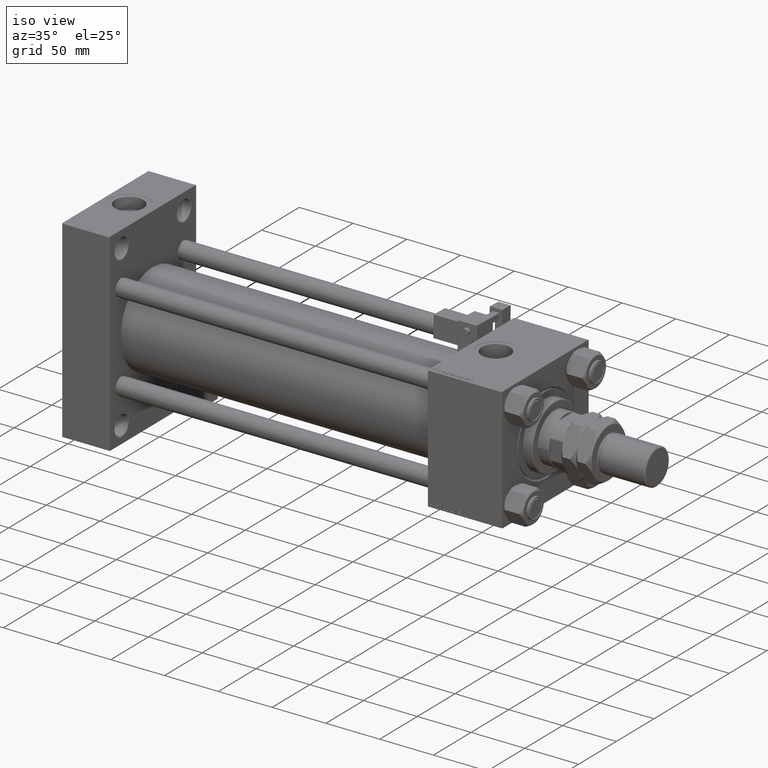
[diagram: clean part render]
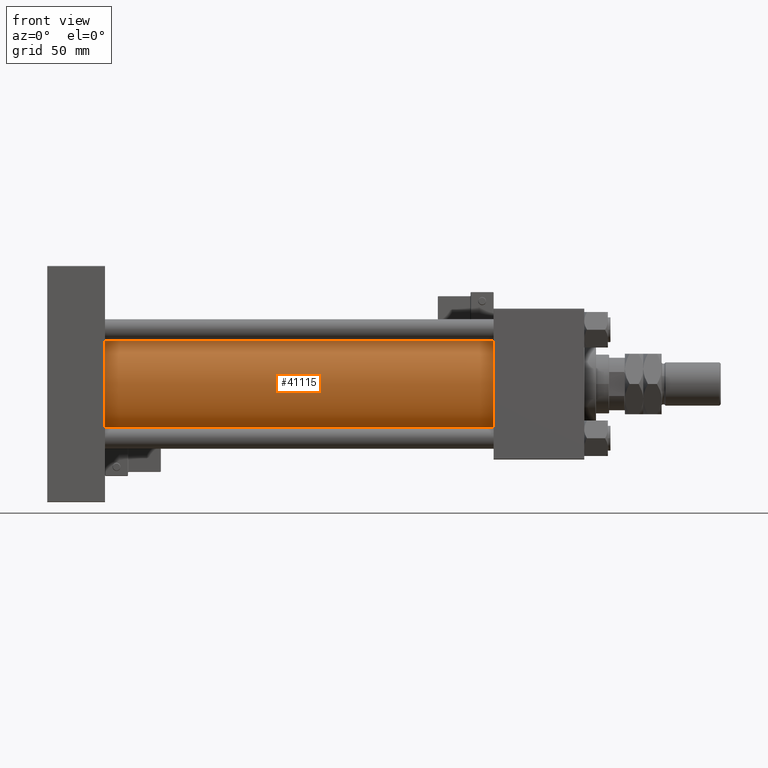
[diagram: tour spotlight — one face highlighted and labeled with its STEP entity id]
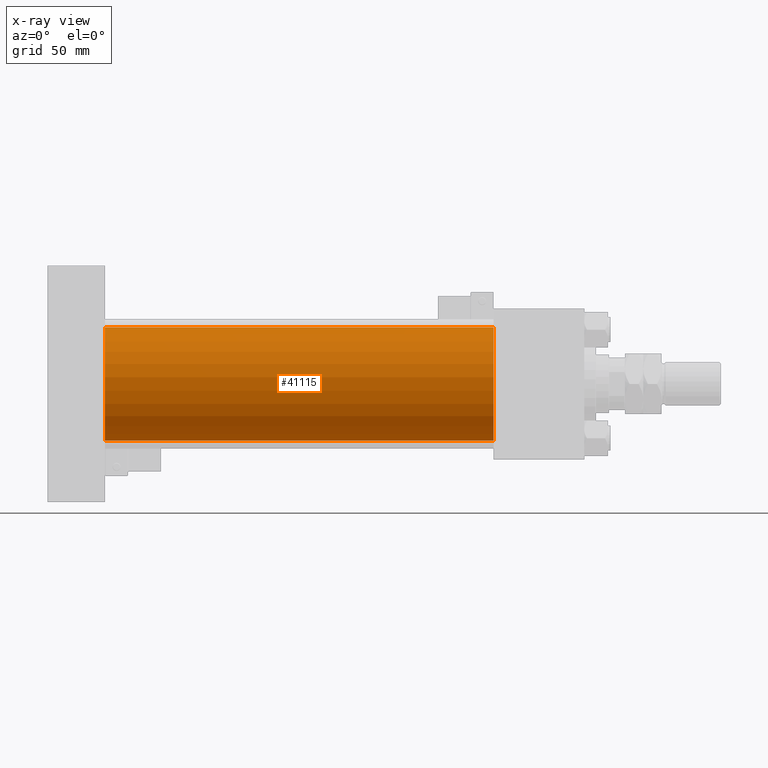
[diagram: x-ray of the same camera — body ghosted, this tour face saturated]
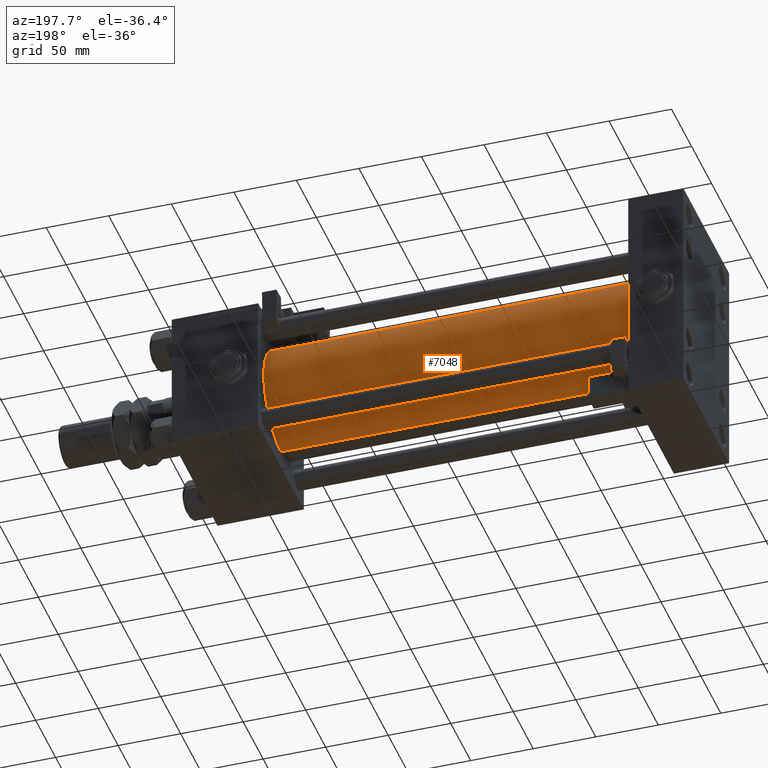
[diagram: tour spotlight — one face highlighted and labeled with its STEP entity id]
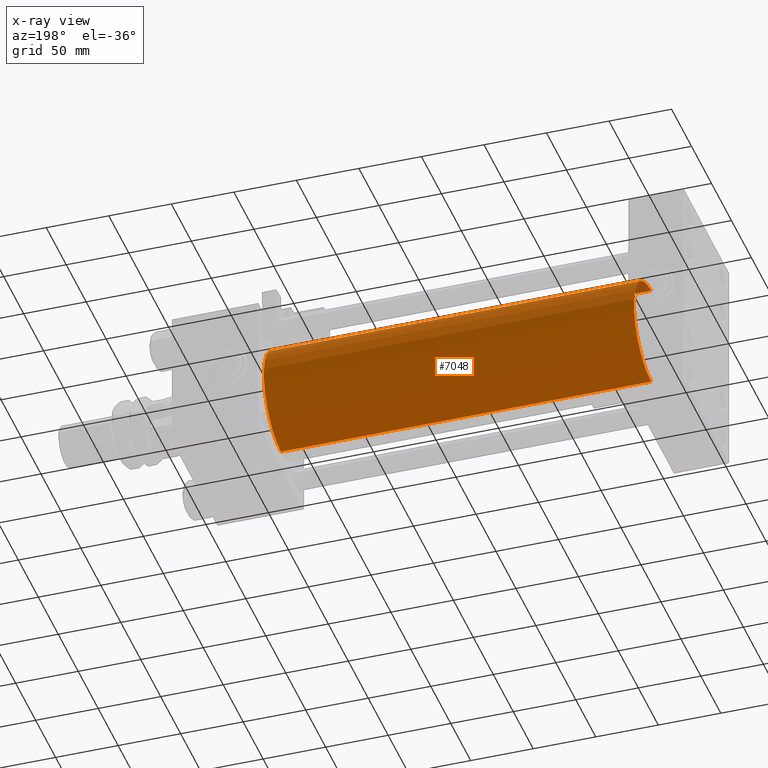
[diagram: x-ray of the same camera — body ghosted, this tour face saturated]
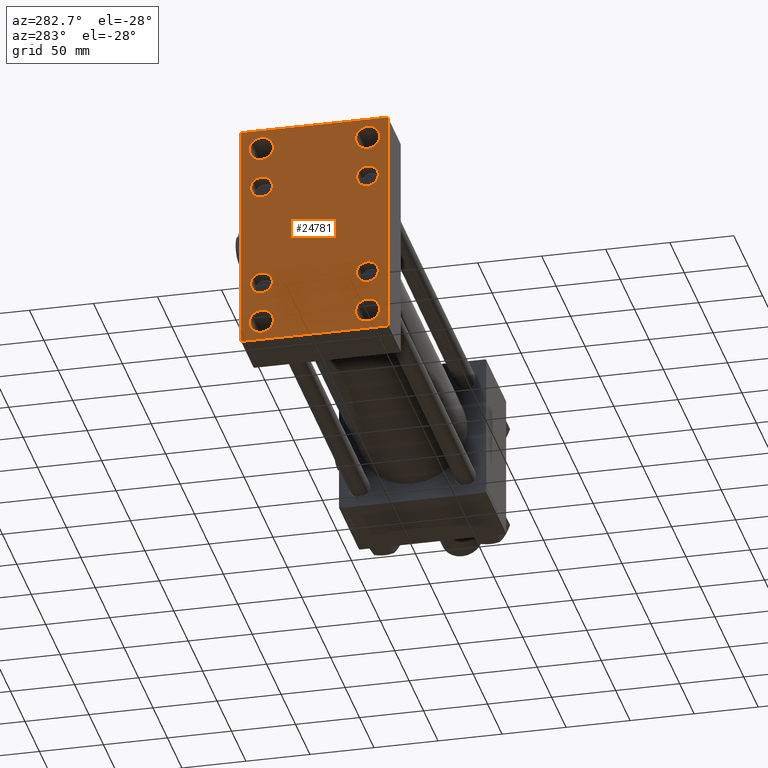
[diagram: tour spotlight — one face highlighted and labeled with its STEP entity id]
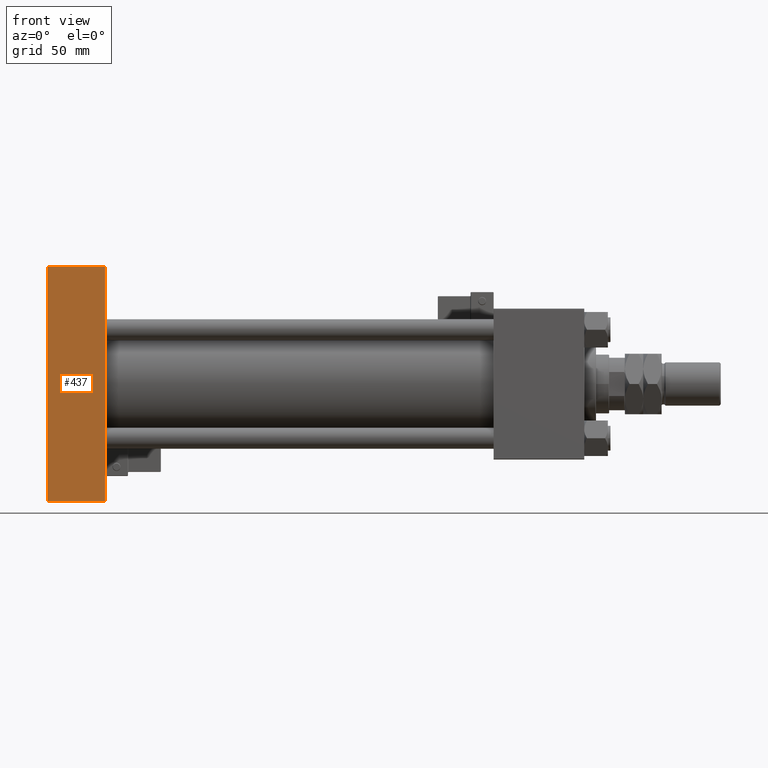
[diagram: tour spotlight — one face highlighted and labeled with its STEP entity id]
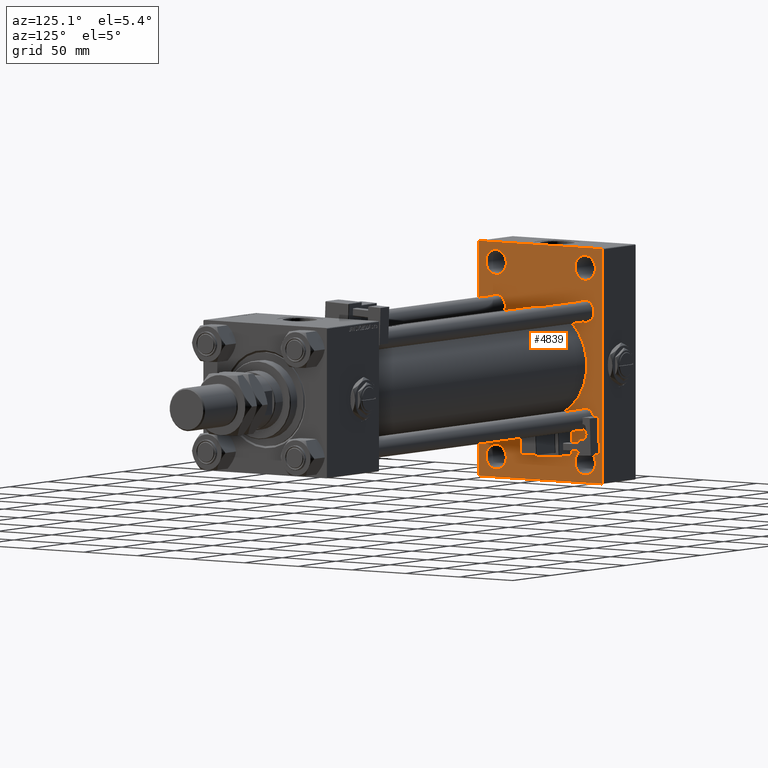
[diagram: tour spotlight — one face highlighted and labeled with its STEP entity id]
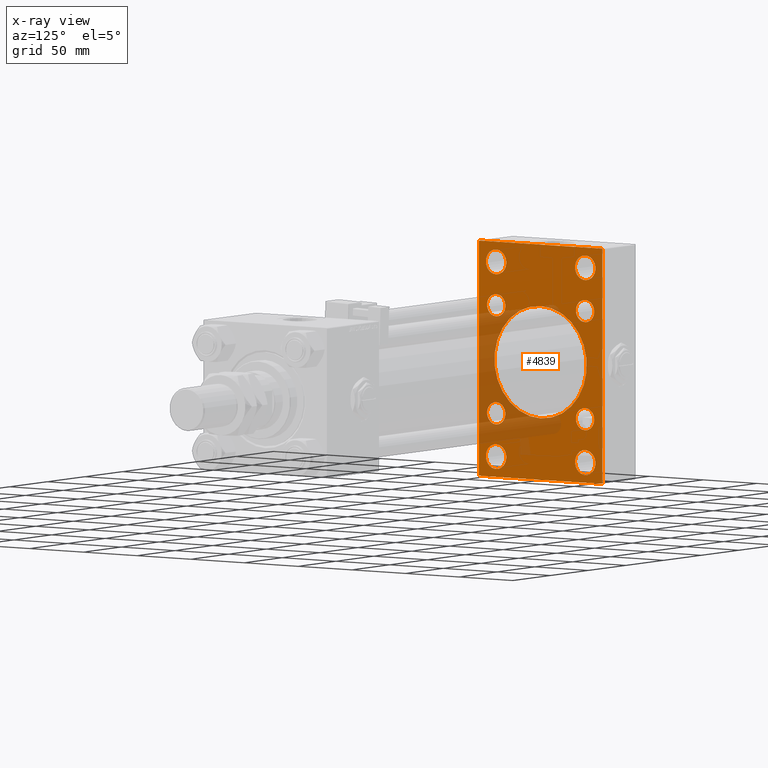
[diagram: x-ray of the same camera — body ghosted, this tour face saturated]
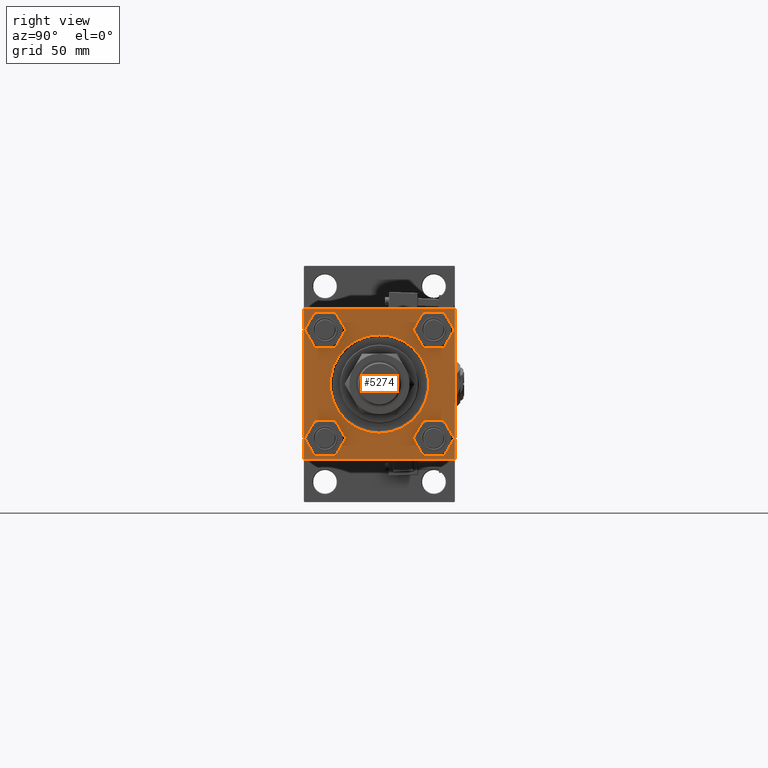
[diagram: tour spotlight — one face highlighted and labeled with its STEP entity id]
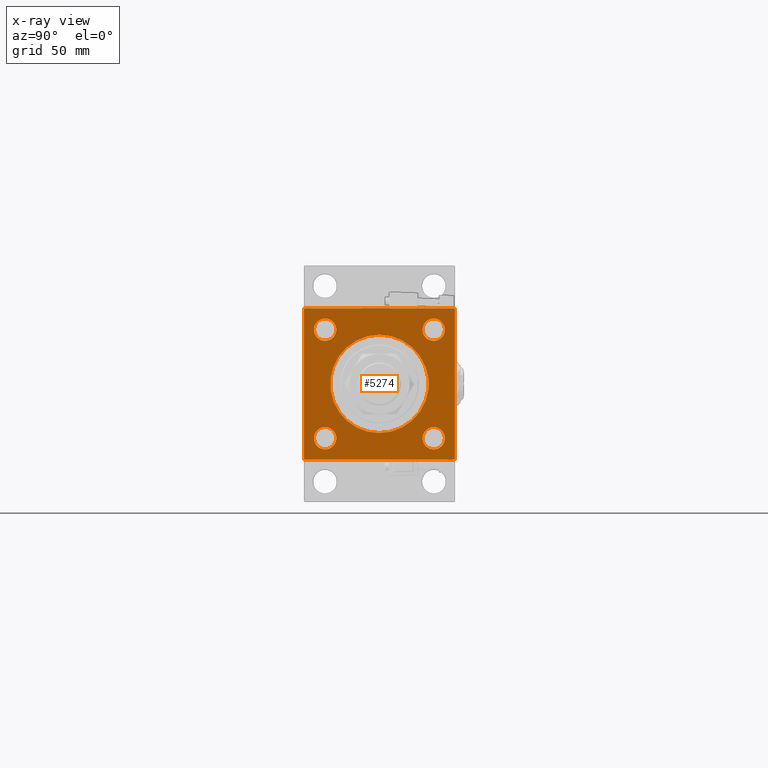
[diagram: x-ray of the same camera — body ghosted, this tour face saturated]
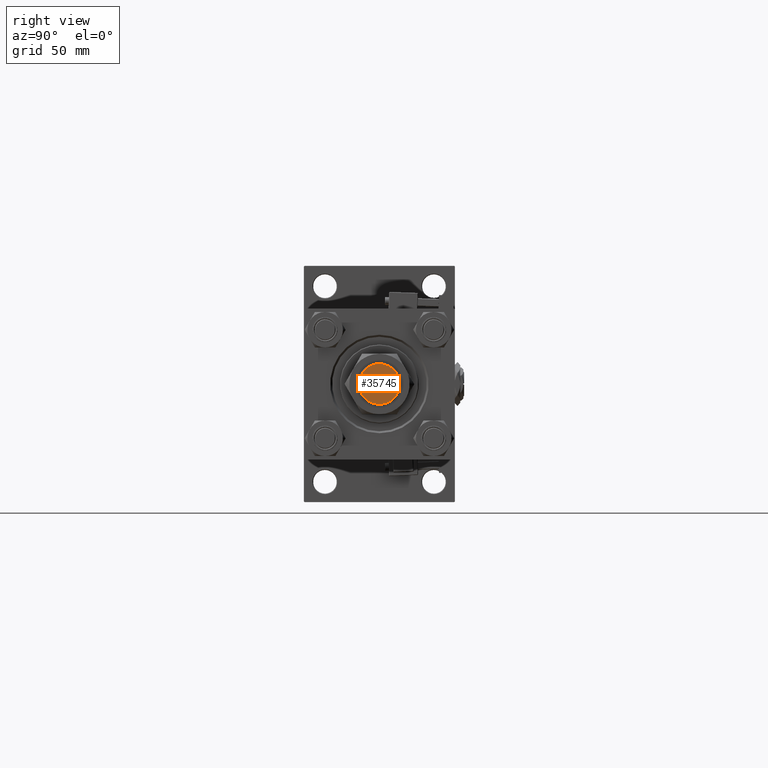
[diagram: tour spotlight — one face highlighted and labeled with its STEP entity id]
A machine part: a face-by-face anatomy tour. The part has 1487 B-rep faces; the first image is the clean iso view, then the 7 largest visible faces are spotlighted one at a time (largest first), each with its STEP entity span.

Face 1 — front view, entity #41115. An x-ray twin of the same camera follows (body ghosted, this face saturated) — the face is partly hidden behind the body. In plain terms, the highlighted cylindrical surface (partial cylindrical patch) has radius 43 mm, axis along (-1, -0, -0).
Definition (entity closure, byte-faithful):
#269 = LINE ( 'NONE', #3986, #52852 ) ;
#1398 = DIRECTION ( 'NONE',  ( -1.000000000000000000, -0.000000000000000000, -0.000000000000000000 ) ) ;
#2106 = VERTEX_POINT ( 'NONE', #49701 ) ;
#2258 = CARTESIAN_POINT ( 'NONE',  ( 43.99999999999998579, 2.663896022368408223E-15, -43.00000000000000000 ) ) ;
#3669 = CARTESIAN_POINT ( 'NONE',  ( 339.9999999999999432, -2.602085213965210642E-15, 0.000000000000000000 ) ) ;
#3945 = DIRECTION ( 'NONE',  ( -1.000000000000000000, -0.000000000000000000, -0.000000000000000000 ) ) ;
#3986 = CARTESIAN_POINT ( 'NONE',  ( 339.9999999999999432, 2.663896022368408223E-15, -43.00000000000000000 ) ) ;
#5315 = ORIENTED_EDGE ( 'NONE', *, *, #11765, .F. ) ;
#6748 = EDGE_LOOP ( 'NONE', ( #5315, #7928, #45940, #27737 ) ) ;
#7106 = CARTESIAN_POINT ( 'NONE',  ( 43.99999999999998579, -2.602085213965210642E-15, 43.00000000000000000 ) ) ;
#7928 = ORIENTED_EDGE ( 'NONE', *, *, #24803, .F. ) ;
#9515 = CIRCLE ( 'NONE', #33153, 43.00000000000000000 ) ;
#11765 = EDGE_CURVE ( 'NONE', #2106, #32927, #269, .T. ) ;
#12081 = VERTEX_POINT ( 'NONE', #36340 ) ;
#15545 = CARTESIAN_POINT ( 'NONE',  ( 339.9999999999999432, -2.602085213965210642E-15, 43.00000000000000000 ) ) ;
#21648 = DIRECTION ( 'NONE',  ( 0.000000000000000000, 0.000000000000000000, 1.000000000000000000 ) ) ;
#22198 = CYLINDRICAL_SURFACE ( 'NONE', #42129, 43.00000000000000000 ) ;
#22303 = EDGE_CURVE ( 'NONE', #29077, #32927, #9515, .T. ) ;
#24803 = EDGE_CURVE ( 'NONE', #12081, #2106, #39627, .T. ) ;
#27737 = ORIENTED_EDGE ( 'NONE', *, *, #22303, .T. ) ;
#28104 = DIRECTION ( 'NONE',  ( -1.000000000000000000, -0.000000000000000000, -0.000000000000000000 ) ) ;
#29077 = VERTEX_POINT ( 'NONE', #7106 ) ;
#29423 = DIRECTION ( 'NONE',  ( 0.000000000000000000, 0.000000000000000000, 1.000000000000000000 ) ) ;
#29636 = FACE_OUTER_BOUND ( 'NONE', #6748, .T. ) ;
#29985 = DIRECTION ( 'NONE',  ( 1.000000000000000000, -0.000000000000000000, 0.000000000000000000 ) ) ;
#32927 = VERTEX_POINT ( 'NONE', #2258 ) ;
#33153 = AXIS2_PLACEMENT_3D ( 'NONE', #46515, #29985, #29423 ) ;
#33245 = AXIS2_PLACEMENT_3D ( 'NONE', #53452, #36356, #44046 ) ;
#36340 = CARTESIAN_POINT ( 'NONE',  ( 339.9999999999999432, -2.602085213965210642E-15, 43.00000000000000000 ) ) ;
#36356 = DIRECTION ( 'NONE',  ( 1.000000000000000000, 0.000000000000000000, 0.000000000000000000 ) ) ;
#39627 = CIRCLE ( 'NONE', #33245, 43.00000000000000000 ) ;
#41115 = ADVANCED_FACE ( 'NONE', ( #29636 ), #22198, .T. ) ;
#42129 = AXIS2_PLACEMENT_3D ( 'NONE', #3669, #3945, #21648 ) ;
#43102 = VECTOR ( 'NONE', #28104, 1000.000000000000000 ) ;
#43376 = EDGE_CURVE ( 'NONE', #12081, #29077, #45745, .T. ) ;
#44046 = DIRECTION ( 'NONE',  ( 0.000000000000000000, 0.000000000000000000, -1.000000000000000000 ) ) ;
#45745 = LINE ( 'NONE', #15545, #43102 ) ;
#45940 = ORIENTED_EDGE ( 'NONE', *, *, #43376, .T. ) ;
#46515 = CARTESIAN_POINT ( 'NONE',  ( 43.99999999999998579, -2.602085213965210642E-15, 0.000000000000000000 ) ) ;
#49701 = CARTESIAN_POINT ( 'NONE',  ( 339.9999999999999432, 2.663896022368408223E-15, -43.00000000000000000 ) ) ;
#52852 = VECTOR ( 'NONE', #1398, 1000.000000000000000 ) ;
#53452 = CARTESIAN_POINT ( 'NONE',  ( 339.9999999999999432, -2.602085213965210642E-15, 0.000000000000000000 ) ) ;

Face 2 — auxiliary view, entity #7048. An x-ray twin of the same camera follows (body ghosted, this face saturated) — the face is partly hidden behind the body. In plain terms, the highlighted cylindrical surface (partial cylindrical patch) has radius 43 mm, axis along (-1, -0, -0).
Definition (entity closure, byte-faithful):
#269 = LINE ( 'NONE', #3986, #52852 ) ;
#1398 = DIRECTION ( 'NONE',  ( -1.000000000000000000, -0.000000000000000000, -0.000000000000000000 ) ) ;
#2106 = VERTEX_POINT ( 'NONE', #49701 ) ;
#2258 = CARTESIAN_POINT ( 'NONE',  ( 43.99999999999998579, 2.663896022368408223E-15, -43.00000000000000000 ) ) ;
#3093 = ORIENTED_EDGE ( 'NONE', *, *, #11765, .T. ) ;
#3986 = CARTESIAN_POINT ( 'NONE',  ( 339.9999999999999432, 2.663896022368408223E-15, -43.00000000000000000 ) ) ;
#7048 = ADVANCED_FACE ( 'NONE', ( #18432 ), #40359, .T. ) ;
#7106 = CARTESIAN_POINT ( 'NONE',  ( 43.99999999999998579, -2.602085213965210642E-15, 43.00000000000000000 ) ) ;
#7543 = CIRCLE ( 'NONE', #34082, 43.00000000000000000 ) ;
#8794 = CARTESIAN_POINT ( 'NONE',  ( 43.99999999999998579, -2.602085213965210642E-15, 0.000000000000000000 ) ) ;
#11765 = EDGE_CURVE ( 'NONE', #2106, #32927, #269, .T. ) ;
#12081 = VERTEX_POINT ( 'NONE', #36340 ) ;
#15545 = CARTESIAN_POINT ( 'NONE',  ( 339.9999999999999432, -2.602085213965210642E-15, 43.00000000000000000 ) ) ;
#17345 = ORIENTED_EDGE ( 'NONE', *, *, #43376, .F. ) ;
#18155 = DIRECTION ( 'NONE',  ( 0.000000000000000000, 0.000000000000000000, 1.000000000000000000 ) ) ;
#18432 = FACE_OUTER_BOUND ( 'NONE', #21619, .T. ) ;
#20478 = AXIS2_PLACEMENT_3D ( 'NONE', #36514, #33068, #53898 ) ;
#21619 = EDGE_LOOP ( 'NONE', ( #29059, #3093, #24150, #17345 ) ) ;
#23365 = EDGE_CURVE ( 'NONE', #2106, #12081, #41415, .T. ) ;
#24150 = ORIENTED_EDGE ( 'NONE', *, *, #44764, .T. ) ;
#27818 = AXIS2_PLACEMENT_3D ( 'NONE', #48084, #48351, #18155 ) ;
#28104 = DIRECTION ( 'NONE',  ( -1.000000000000000000, -0.000000000000000000, -0.000000000000000000 ) ) ;
#29059 = ORIENTED_EDGE ( 'NONE', *, *, #23365, .F. ) ;
#29077 = VERTEX_POINT ( 'NONE', #7106 ) ;
#32927 = VERTEX_POINT ( 'NONE', #2258 ) ;
#33068 = DIRECTION ( 'NONE',  ( 1.000000000000000000, 0.000000000000000000, 0.000000000000000000 ) ) ;
#34082 = AXIS2_PLACEMENT_3D ( 'NONE', #8794, #47559, #56392 ) ;
#36340 = CARTESIAN_POINT ( 'NONE',  ( 339.9999999999999432, -2.602085213965210642E-15, 43.00000000000000000 ) ) ;
#36514 = CARTESIAN_POINT ( 'NONE',  ( 339.9999999999999432, -2.602085213965210642E-15, 0.000000000000000000 ) ) ;
#40359 = CYLINDRICAL_SURFACE ( 'NONE', #27818, 43.00000000000000000 ) ;
#41415 = CIRCLE ( 'NONE', #20478, 43.00000000000000000 ) ;
#43102 = VECTOR ( 'NONE', #28104, 1000.000000000000000 ) ;
#43376 = EDGE_CURVE ( 'NONE', #12081, #29077, #45745, .T. ) ;
#44764 = EDGE_CURVE ( 'NONE', #32927, #29077, #7543, .T. ) ;
#45745 = LINE ( 'NONE', #15545, #43102 ) ;
#47559 = DIRECTION ( 'NONE',  ( 1.000000000000000000, -0.000000000000000000, 0.000000000000000000 ) ) ;
#48084 = CARTESIAN_POINT ( 'NONE',  ( 339.9999999999999432, -2.602085213965210642E-15, 0.000000000000000000 ) ) ;
#48351 = DIRECTION ( 'NONE',  ( -1.000000000000000000, -0.000000000000000000, -0.000000000000000000 ) ) ;
#49701 = CARTESIAN_POINT ( 'NONE',  ( 339.9999999999999432, 2.663896022368408223E-15, -43.00000000000000000 ) ) ;
#52852 = VECTOR ( 'NONE', #1398, 1000.000000000000000 ) ;
#53898 = DIRECTION ( 'NONE',  ( 0.000000000000000000, 0.000000000000000000, -1.000000000000000000 ) ) ;
#56392 = DIRECTION ( 'NONE',  ( 0.000000000000000000, 0.000000000000000000, 1.000000000000000000 ) ) ;

Face 3 — auxiliary view, entity #24781. In plain terms, the highlighted planar face has unit normal (-1, 0, 0).
Definition (entity closure, byte-faithful):
#387 = CARTESIAN_POINT ( 'NONE',  ( 0.000000000000000000, 57.50000000000000000, 90.00000000000000000 ) ) ;
#609 = AXIS2_PLACEMENT_3D ( 'NONE', #55752, #7586, #15589 ) ;
#611 = AXIS2_PLACEMENT_3D ( 'NONE', #50704, #50405, #28771 ) ;
#971 = LINE ( 'NONE', #14109, #28334 ) ;
#1309 = EDGE_CURVE ( 'NONE', #43141, #38008, #33136, .T. ) ;
#1313 = ORIENTED_EDGE ( 'NONE', *, *, #53199, .T. ) ;
#1564 = DIRECTION ( 'NONE',  ( -1.000000000000000000, 0.000000000000000000, -0.000000000000000000 ) ) ;
#1844 = FACE_BOUND ( 'NONE', #27015, .T. ) ;
#1871 = AXIS2_PLACEMENT_3D ( 'NONE', #38042, #26058, #29502 ) ;
#1992 = ORIENTED_EDGE ( 'NONE', *, *, #49177, .T. ) ;
#2283 = VERTEX_POINT ( 'NONE', #39106 ) ;
#2421 = CARTESIAN_POINT ( 'NONE',  ( 0.000000000000000000, -41.34999999999998721, 49.84999999999999432 ) ) ;
#2599 = VERTEX_POINT ( 'NONE', #10163 ) ;
#3070 = VERTEX_POINT ( 'NONE', #35141 ) ;
#3117 = LINE ( 'NONE', #6560, #51779 ) ;
#3138 = CIRCLE ( 'NONE', #41394, 8.499999999999980460 ) ;
#3185 = DIRECTION ( 'NONE',  ( 1.000000000000000000, -0.000000000000000000, 0.000000000000000000 ) ) ;
#3743 = CARTESIAN_POINT ( 'NONE',  ( -0.000000000000000000, -73.49999999999960210, 73.50000000000062528 ) ) ;
#3936 = ORIENTED_EDGE ( 'NONE', *, *, #47045, .T. ) ;
#4325 = CARTESIAN_POINT ( 'NONE',  ( 0.000000000000000000, -57.49999999999999289, -89.49999999999998579 ) ) ;
#4672 = EDGE_CURVE ( 'NONE', #4929, #48321, #52412, .T. ) ;
#4798 = CARTESIAN_POINT ( 'NONE',  ( 0.000000000000000000, -73.49999999999882050, -73.50000000000189004 ) ) ;
#4928 = VECTOR ( 'NONE', #13373, 1000.000000000000000 ) ;
#4929 = VERTEX_POINT ( 'NONE', #4939 ) ;
#4939 = CARTESIAN_POINT ( 'NONE',  ( 0.000000000000000000, -56.99999999999998579, -90.00000000000002842 ) ) ;
#5007 = CARTESIAN_POINT ( 'NONE',  ( 0.000000000000000000, -41.34999999999998721, 32.85000000000002984 ) ) ;
#5142 = ORIENTED_EDGE ( 'NONE', *, *, #55083, .T. ) ;
#5175 = CIRCLE ( 'NONE', #609, 9.500000000000119016 ) ;
#5285 = FACE_BOUND ( 'NONE', #9332, .T. ) ;
#5562 = CARTESIAN_POINT ( 'NONE',  ( 0.000000000000000000, -57.49999999999999289, 89.99999999999998579 ) ) ;
#5785 = EDGE_LOOP ( 'NONE', ( #46264, #7509 ) ) ;
#5843 = FACE_BOUND ( 'NONE', #53395, .T. ) ;
#6062 = EDGE_CURVE ( 'NONE', #25758, #35264, #3138, .T. ) ;
#6278 = DIRECTION ( 'NONE',  ( 0.000000000000000000, 0.000000000000000000, 1.000000000000000000 ) ) ;
#6560 = CARTESIAN_POINT ( 'NONE',  ( 0.000000000000000000, 73.50000000000000000, -73.50000000000000000 ) ) ;
#6788 = EDGE_CURVE ( 'NONE', #53529, #10302, #7340, .T. ) ;
#7112 = DIRECTION ( 'NONE',  ( 0.000000000000000000, -1.000000000000000000, -2.413528314402514583E-16 ) ) ;
#7340 = LINE ( 'NONE', #37010, #56004 ) ;
#7509 = ORIENTED_EDGE ( 'NONE', *, *, #26123, .T. ) ;
#7571 = ORIENTED_EDGE ( 'NONE', *, *, #6788, .T. ) ;
#7586 = DIRECTION ( 'NONE',  ( 1.000000000000000000, -0.000000000000000000, 0.000000000000000000 ) ) ;
#7720 = ORIENTED_EDGE ( 'NONE', *, *, #8982, .T. ) ;
#7992 = VERTEX_POINT ( 'NONE', #26772 ) ;
#8039 = CIRCLE ( 'NONE', #16241, 8.499999999999980460 ) ;
#8081 = VERTEX_POINT ( 'NONE', #56414 ) ;
#8879 = CARTESIAN_POINT ( 'NONE',  ( 0.000000000000000000, -41.34999999999998721, 41.35000000000000853 ) ) ;
#8982 = EDGE_CURVE ( 'NONE', #14386, #7992, #47014, .T. ) ;
#9253 = VERTEX_POINT ( 'NONE', #31280 ) ;
#9332 = EDGE_LOOP ( 'NONE', ( #29686, #12536 ) ) ;
#9501 = AXIS2_PLACEMENT_3D ( 'NONE', #36700, #32425, #28708 ) ;
#9638 = DIRECTION ( 'NONE',  ( 0.000000000000000000, 0.000000000000000000, 1.000000000000000000 ) ) ;
#9925 = CARTESIAN_POINT ( 'NONE',  ( 0.000000000000000000, 57.00000000000000000, 90.00000000000000000 ) ) ;
#10123 = LINE ( 'NONE', #5562, #33919 ) ;
#10163 = CARTESIAN_POINT ( 'NONE',  ( 0.000000000000000000, 41.34999999999999432, -32.85000000000002274 ) ) ;
#10188 = EDGE_CURVE ( 'NONE', #8081, #40742, #5175, .T. ) ;
#10302 = VERTEX_POINT ( 'NONE', #54881 ) ;
#10413 = CARTESIAN_POINT ( 'NONE',  ( 0.000000000000000000, -41.34999999999998721, -41.35000000000000853 ) ) ;
#10479 = CARTESIAN_POINT ( 'NONE',  ( 0.000000000000000000, 41.50000000000000711, 74.50000000000000000 ) ) ;
#10536 = AXIS2_PLACEMENT_3D ( 'NONE', #10479, #45527, #9638 ) ;
#10956 = CIRCLE ( 'NONE', #1871, 9.500000000000119016 ) ;
#11433 = CIRCLE ( 'NONE', #10536, 9.500000000000119016 ) ;
#11486 = CARTESIAN_POINT ( 'NONE',  ( 0.000000000000000000, -57.49999999999999289, 89.50000000000001421 ) ) ;
#12536 = ORIENTED_EDGE ( 'NONE', *, *, #31576, .T. ) ;
#13257 = EDGE_CURVE ( 'NONE', #10302, #9253, #971, .T. ) ;
#13373 = DIRECTION ( 'NONE',  ( 0.000000000000000000, -0.7071067811865622277, 0.7071067811865328068 ) ) ;
#13572 = PLANE ( 'NONE',  #43242 ) ;
#13618 = ORIENTED_EDGE ( 'NONE', *, *, #56051, .T. ) ;
#13646 = VERTEX_POINT ( 'NONE', #39116 ) ;
#14086 = DIRECTION ( 'NONE',  ( 0.000000000000000000, -1.000000000000000000, -1.206764157201257291E-16 ) ) ;
#14109 = CARTESIAN_POINT ( 'NONE',  ( 0.000000000000000000, 57.50000000000000000, 90.00000000000000000 ) ) ;
#14386 = VERTEX_POINT ( 'NONE', #30878 ) ;
#14999 = EDGE_LOOP ( 'NONE', ( #47662, #16579, #30647, #21636, #48449, #31642, #36158, #7571 ) ) ;
#15167 = CIRCLE ( 'NONE', #611, 9.500000000000119016 ) ;
#15553 = CARTESIAN_POINT ( 'NONE',  ( 0.000000000000000000, -41.34999999999998721, 41.35000000000000853 ) ) ;
#15585 = CARTESIAN_POINT ( 'NONE',  ( 0.000000000000000000, 41.34999999999999432, 41.35000000000000142 ) ) ;
#15589 = DIRECTION ( 'NONE',  ( 0.000000000000000000, 0.000000000000000000, 1.000000000000000000 ) ) ;
#16241 = AXIS2_PLACEMENT_3D ( 'NONE', #22821, #31664, #49042 ) ;
#16319 = DIRECTION ( 'NONE',  ( -0.000000000000000000, 0.7071067811865524577, 0.7071067811865426878 ) ) ;
#16579 = ORIENTED_EDGE ( 'NONE', *, *, #34723, .T. ) ;
#16647 = EDGE_LOOP ( 'NONE', ( #1313, #1992 ) ) ;
#18013 = CIRCLE ( 'NONE', #26181, 9.500000000000119016 ) ;
#18404 = FACE_BOUND ( 'NONE', #29323, .T. ) ;
#19002 = AXIS2_PLACEMENT_3D ( 'NONE', #10413, #26674, #44343 ) ;
#19086 = DIRECTION ( 'NONE',  ( 1.000000000000000000, -0.000000000000000000, 0.000000000000000000 ) ) ;
#19694 = DIRECTION ( 'NONE',  ( -0.000000000000000000, -0.7071067811865474617, -0.7071067811865474617 ) ) ;
#20460 = CARTESIAN_POINT ( 'NONE',  ( 0.000000000000000000, -41.50000000000000000, -84.00000000000011369 ) ) ;
#21462 = CARTESIAN_POINT ( 'NONE',  ( 0.000000000000000000, 41.50000000000000711, -74.50000000000000000 ) ) ;
#21636 = ORIENTED_EDGE ( 'NONE', *, *, #4672, .T. ) ;
#22049 = VECTOR ( 'NONE', #7112, 1000.000000000000000 ) ;
#22601 = ORIENTED_EDGE ( 'NONE', *, *, #35587, .T. ) ;
#22760 = ORIENTED_EDGE ( 'NONE', *, *, #6062, .T. ) ;
#22820 = VERTEX_POINT ( 'NONE', #28731 ) ;
#22821 = CARTESIAN_POINT ( 'NONE',  ( 0.000000000000000000, 41.34999999999999432, -41.35000000000000142 ) ) ;
#23502 = CIRCLE ( 'NONE', #35341, 8.499999999999980460 ) ;
#23522 = EDGE_LOOP ( 'NONE', ( #5142, #29861 ) ) ;
#23532 = FACE_BOUND ( 'NONE', #47462, .T. ) ;
#23665 = CARTESIAN_POINT ( 'NONE',  ( 0.000000000000000000, 41.50000000000000711, 74.50000000000000000 ) ) ;
#23741 = CARTESIAN_POINT ( 'NONE',  ( 0.000000000000000000, 41.34999999999999432, -41.35000000000000142 ) ) ;
#23822 = DIRECTION ( 'NONE',  ( 0.000000000000000000, 0.000000000000000000, 1.000000000000000000 ) ) ;
#24778 = LINE ( 'NONE', #37324, #22049 ) ;
#24781 = ADVANCED_FACE ( 'NONE', ( #18404, #23532, #40910, #35505, #5843, #5285, #35781, #1844, #49165 ), #13572, .T. ) ;
#24927 = AXIS2_PLACEMENT_3D ( 'NONE', #23665, #27657, #6278 ) ;
#25115 = DIRECTION ( 'NONE',  ( 1.000000000000000000, -0.000000000000000000, 0.000000000000000000 ) ) ;
#25166 = AXIS2_PLACEMENT_3D ( 'NONE', #53279, #19086, #41291 ) ;
#25295 = EDGE_CURVE ( 'NONE', #3070, #39746, #11433, .T. ) ;
#25758 = VERTEX_POINT ( 'NONE', #2421 ) ;
#26058 = DIRECTION ( 'NONE',  ( 1.000000000000000000, -0.000000000000000000, 0.000000000000000000 ) ) ;
#26086 = DIRECTION ( 'NONE',  ( 0.000000000000000000, 0.000000000000000000, -1.000000000000000000 ) ) ;
#26123 = EDGE_CURVE ( 'NONE', #22820, #2599, #35160, .T. ) ;
#26181 = AXIS2_PLACEMENT_3D ( 'NONE', #55649, #47374, #30278 ) ;
#26241 = EDGE_CURVE ( 'NONE', #48240, #33154, #38517, .T. ) ;
#26663 = DIRECTION ( 'NONE',  ( -0.000000000000000000, 0.000000000000000000, 1.000000000000000000 ) ) ;
#26674 = DIRECTION ( 'NONE',  ( 1.000000000000000000, -0.000000000000000000, 0.000000000000000000 ) ) ;
#26772 = CARTESIAN_POINT ( 'NONE',  ( 0.000000000000000000, 41.34999999999999432, 32.85000000000002274 ) ) ;
#27015 = EDGE_LOOP ( 'NONE', ( #7720, #34749 ) ) ;
#27657 = DIRECTION ( 'NONE',  ( 1.000000000000000000, -0.000000000000000000, 0.000000000000000000 ) ) ;
#28334 = VECTOR ( 'NONE', #26086, 1000.000000000000000 ) ;
#28708 = DIRECTION ( 'NONE',  ( 0.000000000000000000, 0.000000000000000000, 1.000000000000000000 ) ) ;
#28731 = CARTESIAN_POINT ( 'NONE',  ( 0.000000000000000000, 41.34999999999999432, -49.84999999999998721 ) ) ;
#28771 = DIRECTION ( 'NONE',  ( 0.000000000000000000, 0.000000000000000000, 1.000000000000000000 ) ) ;
#29323 = EDGE_LOOP ( 'NONE', ( #3936, #55659 ) ) ;
#29502 = DIRECTION ( 'NONE',  ( 0.000000000000000000, 0.000000000000000000, 1.000000000000000000 ) ) ;
#29686 = ORIENTED_EDGE ( 'NONE', *, *, #35327, .T. ) ;
#29861 = ORIENTED_EDGE ( 'NONE', *, *, #1309, .T. ) ;
#29954 = DIRECTION ( 'NONE',  ( 0.000000000000000000, 0.000000000000000000, 1.000000000000000000 ) ) ;
#30278 = DIRECTION ( 'NONE',  ( 0.000000000000000000, 0.000000000000000000, 1.000000000000000000 ) ) ;
#30647 = ORIENTED_EDGE ( 'NONE', *, *, #39957, .T. ) ;
#30878 = CARTESIAN_POINT ( 'NONE',  ( 0.000000000000000000, 41.34999999999999432, 49.84999999999998721 ) ) ;
#31280 = CARTESIAN_POINT ( 'NONE',  ( 0.000000000000000000, 57.50000000000000000, -89.49999999999994316 ) ) ;
#31576 = EDGE_CURVE ( 'NONE', #2283, #41427, #35233, .T. ) ;
#31642 = ORIENTED_EDGE ( 'NONE', *, *, #26241, .T. ) ;
#31664 = DIRECTION ( 'NONE',  ( 1.000000000000000000, -0.000000000000000000, 0.000000000000000000 ) ) ;
#32425 = DIRECTION ( 'NONE',  ( 1.000000000000000000, -0.000000000000000000, 0.000000000000000000 ) ) ;
#33136 = CIRCLE ( 'NONE', #9501, 9.500000000000119016 ) ;
#33154 = VERTEX_POINT ( 'NONE', #48389 ) ;
#33248 = DIRECTION ( 'NONE',  ( 0.000000000000000000, 0.000000000000000000, 1.000000000000000000 ) ) ;
#33708 = DIRECTION ( 'NONE',  ( 1.000000000000000000, -0.000000000000000000, 0.000000000000000000 ) ) ;
#33919 = VECTOR ( 'NONE', #48335, 1000.000000000000000 ) ;
#33953 = CIRCLE ( 'NONE', #47616, 8.499999999999980460 ) ;
#34555 = EDGE_CURVE ( 'NONE', #2599, #22820, #8039, .T. ) ;
#34723 = EDGE_CURVE ( 'NONE', #9253, #55676, #3117, .T. ) ;
#34749 = ORIENTED_EDGE ( 'NONE', *, *, #45371, .T. ) ;
#35106 = DIRECTION ( 'NONE',  ( 1.000000000000000000, -0.000000000000000000, 0.000000000000000000 ) ) ;
#35141 = CARTESIAN_POINT ( 'NONE',  ( 0.000000000000000000, 41.50000000000000711, 64.99999999999987210 ) ) ;
#35160 = CIRCLE ( 'NONE', #45161, 8.499999999999980460 ) ;
#35233 = CIRCLE ( 'NONE', #42512, 8.499999999999980460 ) ;
#35264 = VERTEX_POINT ( 'NONE', #5007 ) ;
#35327 = EDGE_CURVE ( 'NONE', #41427, #2283, #36294, .T. ) ;
#35341 = AXIS2_PLACEMENT_3D ( 'NONE', #8879, #35106, #52490 ) ;
#35505 = FACE_BOUND ( 'NONE', #16647, .T. ) ;
#35587 = EDGE_CURVE ( 'NONE', #40742, #8081, #10956, .T. ) ;
#35781 = FACE_BOUND ( 'NONE', #5785, .T. ) ;
#36158 = ORIENTED_EDGE ( 'NONE', *, *, #48147, .F. ) ;
#36294 = CIRCLE ( 'NONE', #19002, 8.499999999999980460 ) ;
#36647 = CARTESIAN_POINT ( 'NONE',  ( 0.000000000000000000, -41.34999999999998721, -32.85000000000002984 ) ) ;
#36658 = DIRECTION ( 'NONE',  ( 1.000000000000000000, -0.000000000000000000, 0.000000000000000000 ) ) ;
#36700 = CARTESIAN_POINT ( 'NONE',  ( 0.000000000000000000, -41.50000000000000000, -74.50000000000000000 ) ) ;
#37010 = CARTESIAN_POINT ( 'NONE',  ( 0.000000000000000000, 73.50000000000157740, 73.49999999999748468 ) ) ;
#37324 = CARTESIAN_POINT ( 'NONE',  ( 0.000000000000000000, 57.50000000000000000, -90.00000000000000000 ) ) ;
#38008 = VERTEX_POINT ( 'NONE', #47343 ) ;
#38042 = CARTESIAN_POINT ( 'NONE',  ( 0.000000000000000000, -41.50000000000000000, 74.50000000000000000 ) ) ;
#38308 = CARTESIAN_POINT ( 'NONE',  ( 0.000000000000000000, -41.50000000000000000, 64.99999999999987210 ) ) ;
#38517 = LINE ( 'NONE', #3743, #39581 ) ;
#39106 = CARTESIAN_POINT ( 'NONE',  ( 0.000000000000000000, -41.34999999999998721, -49.84999999999999432 ) ) ;
#39116 = CARTESIAN_POINT ( 'NONE',  ( 0.000000000000000000, 41.50000000000000711, -84.00000000000011369 ) ) ;
#39563 = AXIS2_PLACEMENT_3D ( 'NONE', #21462, #33708, #51928 ) ;
#39581 = VECTOR ( 'NONE', #16319, 1000.000000000000000 ) ;
#39746 = VERTEX_POINT ( 'NONE', #49367 ) ;
#39957 = EDGE_CURVE ( 'NONE', #55676, #4929, #24778, .T. ) ;
#40013 = LINE ( 'NONE', #387, #44069 ) ;
#40092 = CARTESIAN_POINT ( 'NONE',  ( 0.000000000000000000, 57.00000000000000000, -90.00000000000000000 ) ) ;
#40742 = VERTEX_POINT ( 'NONE', #38308 ) ;
#40910 = FACE_BOUND ( 'NONE', #23522, .T. ) ;
#41291 = DIRECTION ( 'NONE',  ( 0.000000000000000000, 0.000000000000000000, 1.000000000000000000 ) ) ;
#41323 = EDGE_CURVE ( 'NONE', #48240, #48321, #10123, .T. ) ;
#41394 = AXIS2_PLACEMENT_3D ( 'NONE', #15553, #36658, #23822 ) ;
#41427 = VERTEX_POINT ( 'NONE', #36647 ) ;
#41681 = DIRECTION ( 'NONE',  ( 0.000000000000000000, 0.000000000000000000, 1.000000000000000000 ) ) ;
#42512 = AXIS2_PLACEMENT_3D ( 'NONE', #55321, #25115, #29954 ) ;
#43141 = VERTEX_POINT ( 'NONE', #20460 ) ;
#43242 = AXIS2_PLACEMENT_3D ( 'NONE', #53162, #1564, #26663 ) ;
#43407 = ORIENTED_EDGE ( 'NONE', *, *, #10188, .T. ) ;
#43750 = CARTESIAN_POINT ( 'NONE',  ( 0.000000000000000000, 41.50000000000000711, -64.99999999999987210 ) ) ;
#44069 = VECTOR ( 'NONE', #14086, 1000.000000000000000 ) ;
#44343 = DIRECTION ( 'NONE',  ( 0.000000000000000000, 0.000000000000000000, 1.000000000000000000 ) ) ;
#45161 = AXIS2_PLACEMENT_3D ( 'NONE', #23741, #3185, #41681 ) ;
#45371 = EDGE_CURVE ( 'NONE', #7992, #14386, #33953, .T. ) ;
#45435 = VERTEX_POINT ( 'NONE', #43750 ) ;
#45527 = DIRECTION ( 'NONE',  ( 1.000000000000000000, -0.000000000000000000, 0.000000000000000000 ) ) ;
#46264 = ORIENTED_EDGE ( 'NONE', *, *, #34555, .T. ) ;
#47014 = CIRCLE ( 'NONE', #25166, 8.499999999999980460 ) ;
#47045 = EDGE_CURVE ( 'NONE', #39746, #3070, #53153, .T. ) ;
#47343 = CARTESIAN_POINT ( 'NONE',  ( 0.000000000000000000, -41.50000000000000000, -64.99999999999987210 ) ) ;
#47374 = DIRECTION ( 'NONE',  ( 1.000000000000000000, -0.000000000000000000, 0.000000000000000000 ) ) ;
#47462 = EDGE_LOOP ( 'NONE', ( #43407, #22601 ) ) ;
#47616 = AXIS2_PLACEMENT_3D ( 'NONE', #15585, #55747, #33248 ) ;
#47662 = ORIENTED_EDGE ( 'NONE', *, *, #13257, .T. ) ;
#48147 = EDGE_CURVE ( 'NONE', #53529, #33154, #40013, .T. ) ;
#48240 = VERTEX_POINT ( 'NONE', #11486 ) ;
#48321 = VERTEX_POINT ( 'NONE', #4325 ) ;
#48335 = DIRECTION ( 'NONE',  ( 0.000000000000000000, 0.000000000000000000, -1.000000000000000000 ) ) ;
#48389 = CARTESIAN_POINT ( 'NONE',  ( 0.000000000000000000, -57.00000000000001421, 89.99999999999998579 ) ) ;
#48449 = ORIENTED_EDGE ( 'NONE', *, *, #41323, .F. ) ;
#49042 = DIRECTION ( 'NONE',  ( 0.000000000000000000, 0.000000000000000000, 1.000000000000000000 ) ) ;
#49165 = FACE_OUTER_BOUND ( 'NONE', #14999, .T. ) ;
#49177 = EDGE_CURVE ( 'NONE', #13646, #45435, #54148, .T. ) ;
#49367 = CARTESIAN_POINT ( 'NONE',  ( 0.000000000000000000, 41.50000000000000711, 84.00000000000011369 ) ) ;
#50405 = DIRECTION ( 'NONE',  ( 1.000000000000000000, -0.000000000000000000, 0.000000000000000000 ) ) ;
#50704 = CARTESIAN_POINT ( 'NONE',  ( 0.000000000000000000, 41.50000000000000711, -74.50000000000000000 ) ) ;
#51779 = VECTOR ( 'NONE', #19694, 1000.000000000000114 ) ;
#51928 = DIRECTION ( 'NONE',  ( 0.000000000000000000, 0.000000000000000000, 1.000000000000000000 ) ) ;
#52412 = LINE ( 'NONE', #4798, #4928 ) ;
#52490 = DIRECTION ( 'NONE',  ( 0.000000000000000000, 0.000000000000000000, 1.000000000000000000 ) ) ;
#53153 = CIRCLE ( 'NONE', #24927, 9.500000000000119016 ) ;
#53162 = CARTESIAN_POINT ( 'NONE',  ( 0.000000000000000000, 0.000000000000000000, 0.000000000000000000 ) ) ;
#53199 = EDGE_CURVE ( 'NONE', #45435, #13646, #15167, .T. ) ;
#53279 = CARTESIAN_POINT ( 'NONE',  ( 0.000000000000000000, 41.34999999999999432, 41.35000000000000142 ) ) ;
#53395 = EDGE_LOOP ( 'NONE', ( #22760, #13618 ) ) ;
#53529 = VERTEX_POINT ( 'NONE', #9925 ) ;
#54148 = CIRCLE ( 'NONE', #39563, 9.500000000000119016 ) ;
#54668 = DIRECTION ( 'NONE',  ( 0.000000000000000000, 0.7071067811865279218, -0.7071067811865672237 ) ) ;
#54881 = CARTESIAN_POINT ( 'NONE',  ( 0.000000000000000000, 57.50000000000000000, 89.49999999999997158 ) ) ;
#55083 = EDGE_CURVE ( 'NONE', #38008, #43141, #18013, .T. ) ;
#55321 = CARTESIAN_POINT ( 'NONE',  ( 0.000000000000000000, -41.34999999999998721, -41.35000000000000853 ) ) ;
#55649 = CARTESIAN_POINT ( 'NONE',  ( 0.000000000000000000, -41.50000000000000000, -74.50000000000000000 ) ) ;
#55659 = ORIENTED_EDGE ( 'NONE', *, *, #25295, .T. ) ;
#55676 = VERTEX_POINT ( 'NONE', #40092 ) ;
#55747 = DIRECTION ( 'NONE',  ( 1.000000000000000000, -0.000000000000000000, 0.000000000000000000 ) ) ;
#55752 = CARTESIAN_POINT ( 'NONE',  ( 0.000000000000000000, -41.50000000000000000, 74.50000000000000000 ) ) ;
#56004 = VECTOR ( 'NONE', #54668, 1000.000000000000000 ) ;
#56051 = EDGE_CURVE ( 'NONE', #35264, #25758, #23502, .T. ) ;
#56414 = CARTESIAN_POINT ( 'NONE',  ( 0.000000000000000000, -41.50000000000000000, 84.00000000000011369 ) ) ;

Face 4 — front view, entity #437. In plain terms, the highlighted planar face has unit normal (0, 1, 0).
Definition (entity closure, byte-faithful):
#85 = VERTEX_POINT ( 'NONE', #28269 ) ;
#373 = EDGE_CURVE ( 'NONE', #45520, #85, #39549, .T. ) ;
#437 = ADVANCED_FACE ( 'NONE', ( #13904 ), #48114, .F. ) ;
#3605 = EDGE_CURVE ( 'NONE', #45520, #48240, #31008, .T. ) ;
#4325 = CARTESIAN_POINT ( 'NONE',  ( 0.000000000000000000, -57.49999999999999289, -89.49999999999998579 ) ) ;
#5562 = CARTESIAN_POINT ( 'NONE',  ( 0.000000000000000000, -57.49999999999999289, 89.99999999999998579 ) ) ;
#9053 = CARTESIAN_POINT ( 'NONE',  ( 44.00000000000000000, -57.49999999999999289, 89.99999999999998579 ) ) ;
#10123 = LINE ( 'NONE', #5562, #33919 ) ;
#10349 = AXIS2_PLACEMENT_3D ( 'NONE', #9053, #26443, #18182 ) ;
#11383 = DIRECTION ( 'NONE',  ( 1.000000000000000000, 0.000000000000000000, 0.000000000000000000 ) ) ;
#11486 = CARTESIAN_POINT ( 'NONE',  ( 0.000000000000000000, -57.49999999999999289, 89.50000000000001421 ) ) ;
#13469 = VECTOR ( 'NONE', #11383, 1000.000000000000000 ) ;
#13904 = FACE_OUTER_BOUND ( 'NONE', #20802, .T. ) ;
#17646 = VECTOR ( 'NONE', #48386, 1000.000000000000000 ) ;
#18182 = DIRECTION ( 'NONE',  ( 0.000000000000000000, -0.000000000000000000, 1.000000000000000000 ) ) ;
#20407 = ORIENTED_EDGE ( 'NONE', *, *, #41323, .T. ) ;
#20802 = EDGE_LOOP ( 'NONE', ( #20407, #36862, #49952, #26076 ) ) ;
#25062 = CARTESIAN_POINT ( 'NONE',  ( 44.00000000000000000, -57.49999999999999289, -89.50000000000004263 ) ) ;
#26076 = ORIENTED_EDGE ( 'NONE', *, *, #3605, .T. ) ;
#26443 = DIRECTION ( 'NONE',  ( -0.000000000000000000, 1.000000000000000000, 0.000000000000000000 ) ) ;
#28269 = CARTESIAN_POINT ( 'NONE',  ( 44.00000000000000000, -57.49999999999999289, -89.49999999999998579 ) ) ;
#30732 = DIRECTION ( 'NONE',  ( 0.000000000000000000, 0.000000000000000000, -1.000000000000000000 ) ) ;
#31008 = LINE ( 'NONE', #34162, #17646 ) ;
#32997 = EDGE_CURVE ( 'NONE', #48321, #85, #50711, .T. ) ;
#33919 = VECTOR ( 'NONE', #48335, 1000.000000000000000 ) ;
#34162 = CARTESIAN_POINT ( 'NONE',  ( 44.00000000000000000, -57.49999999999999289, 89.50000000000001421 ) ) ;
#34999 = CARTESIAN_POINT ( 'NONE',  ( 44.00000000000000000, -57.49999999999999289, 89.99999999999998579 ) ) ;
#36862 = ORIENTED_EDGE ( 'NONE', *, *, #32997, .T. ) ;
#36904 = CARTESIAN_POINT ( 'NONE',  ( 44.00000000000000000, -57.49999999999999289, 89.50000000000001421 ) ) ;
#39549 = LINE ( 'NONE', #34999, #54064 ) ;
#41323 = EDGE_CURVE ( 'NONE', #48240, #48321, #10123, .T. ) ;
#45520 = VERTEX_POINT ( 'NONE', #36904 ) ;
#48114 = PLANE ( 'NONE',  #10349 ) ;
#48240 = VERTEX_POINT ( 'NONE', #11486 ) ;
#48321 = VERTEX_POINT ( 'NONE', #4325 ) ;
#48335 = DIRECTION ( 'NONE',  ( 0.000000000000000000, 0.000000000000000000, -1.000000000000000000 ) ) ;
#48386 = DIRECTION ( 'NONE',  ( -1.000000000000000000, 0.000000000000000000, 0.000000000000000000 ) ) ;
#49952 = ORIENTED_EDGE ( 'NONE', *, *, #373, .F. ) ;
#50711 = LINE ( 'NONE', #25062, #13469 ) ;
#54064 = VECTOR ( 'NONE', #30732, 1000.000000000000000 ) ;

Face 5 — auxiliary view, entity #4839. An x-ray twin of the same camera follows (body ghosted, this face saturated) — the face is partly hidden behind the body. In plain terms, the highlighted planar face has unit normal (-1, 0, 0).
Definition (entity closure, byte-faithful):
#85 = VERTEX_POINT ( 'NONE', #28269 ) ;
#315 = CARTESIAN_POINT ( 'NONE',  ( 44.00000000000000000, 57.50000000000000000, -90.00000000000000000 ) ) ;
#373 = EDGE_CURVE ( 'NONE', #45520, #85, #39549, .T. ) ;
#786 = AXIS2_PLACEMENT_3D ( 'NONE', #12731, #4167, #43505 ) ;
#884 = DIRECTION ( 'NONE',  ( 0.000000000000000000, -1.000000000000000000, -2.413528314402514583E-16 ) ) ;
#1263 = VERTEX_POINT ( 'NONE', #41801 ) ;
#1463 = CIRCLE ( 'NONE', #33343, 9.500000000000063949 ) ;
#1626 = DIRECTION ( 'NONE',  ( -1.000000000000000000, 0.000000000000000000, -0.000000000000000000 ) ) ;
#1695 = ORIENTED_EDGE ( 'NONE', *, *, #7517, .T. ) ;
#1940 = DIRECTION ( 'NONE',  ( 0.000000000000000000, 0.000000000000000000, 1.000000000000000000 ) ) ;
#2074 = DIRECTION ( 'NONE',  ( 0.000000000000000000, 0.000000000000000000, 1.000000000000000000 ) ) ;
#2151 = CARTESIAN_POINT ( 'NONE',  ( 44.00000000000000000, 41.34999999999999432, 32.84999999999999432 ) ) ;
#2258 = CARTESIAN_POINT ( 'NONE',  ( 43.99999999999998579, 2.663896022368408223E-15, -43.00000000000000000 ) ) ;
#2423 = FACE_BOUND ( 'NONE', #51519, .T. ) ;
#3263 = FACE_BOUND ( 'NONE', #17851, .T. ) ;
#3381 = CARTESIAN_POINT ( 'NONE',  ( 44.00000000000000000, -41.50000000000000000, 74.50000000000000000 ) ) ;
#3487 = CARTESIAN_POINT ( 'NONE',  ( 44.00000000000000000, 41.34999999999999432, -41.35000000000000142 ) ) ;
#3552 = CARTESIAN_POINT ( 'NONE',  ( 44.00000000000000000, -41.50000000000000000, -74.50000000000000000 ) ) ;
#3575 = DIRECTION ( 'NONE',  ( -1.000000000000000000, 0.000000000000000000, -0.000000000000000000 ) ) ;
#3737 = VERTEX_POINT ( 'NONE', #43131 ) ;
#3816 = CIRCLE ( 'NONE', #24786, 8.500000000000007105 ) ;
#3846 = DIRECTION ( 'NONE',  ( -0.000000000000000000, -0.7071067811865524577, -0.7071067811865426878 ) ) ;
#4167 = DIRECTION ( 'NONE',  ( -1.000000000000000000, 0.000000000000000000, -0.000000000000000000 ) ) ;
#4571 = ORIENTED_EDGE ( 'NONE', *, *, #26935, .T. ) ;
#4636 = CARTESIAN_POINT ( 'NONE',  ( 44.00000000000000000, -41.34999999999998721, 41.35000000000000853 ) ) ;
#4687 = LINE ( 'NONE', #35203, #30194 ) ;
#4731 = CARTESIAN_POINT ( 'NONE',  ( 44.00000000000000000, -41.50000000000000000, -74.50000000000000000 ) ) ;
#4839 = ADVANCED_FACE ( 'NONE', ( #38314, #24933, #32920, #7259, #2423, #3263, #33202, #46027, #11260, #55147 ), #6987, .F. ) ;
#5022 = AXIS2_PLACEMENT_3D ( 'NONE', #31748, #40578, #27461 ) ;
#5949 = CIRCLE ( 'NONE', #54224, 8.500000000000007105 ) ;
#6076 = CARTESIAN_POINT ( 'NONE',  ( 44.00000000000000000, -56.99999999999998579, -90.00000000000002842 ) ) ;
#6129 = AXIS2_PLACEMENT_3D ( 'NONE', #33657, #32810, #16286 ) ;
#6610 = VERTEX_POINT ( 'NONE', #38753 ) ;
#6672 = ORIENTED_EDGE ( 'NONE', *, *, #16934, .T. ) ;
#6818 = EDGE_CURVE ( 'NONE', #22810, #54492, #33218, .T. ) ;
#6923 = DIRECTION ( 'NONE',  ( -1.000000000000000000, 0.000000000000000000, -0.000000000000000000 ) ) ;
#6987 = PLANE ( 'NONE',  #37685 ) ;
#7106 = CARTESIAN_POINT ( 'NONE',  ( 43.99999999999998579, -2.602085213965210642E-15, 43.00000000000000000 ) ) ;
#7259 = FACE_BOUND ( 'NONE', #27024, .T. ) ;
#7395 = ORIENTED_EDGE ( 'NONE', *, *, #41622, .T. ) ;
#7517 = EDGE_CURVE ( 'NONE', #9583, #15582, #5949, .T. ) ;
#7536 = DIRECTION ( 'NONE',  ( 0.000000000000000000, 0.7071067811865622277, -0.7071067811865328068 ) ) ;
#7543 = CIRCLE ( 'NONE', #34082, 43.00000000000000000 ) ;
#7659 = EDGE_LOOP ( 'NONE', ( #45041, #9075 ) ) ;
#7759 = CIRCLE ( 'NONE', #5022, 8.500000000000007105 ) ;
#7836 = DIRECTION ( 'NONE',  ( -1.000000000000000000, 0.000000000000000000, -0.000000000000000000 ) ) ;
#7863 = VERTEX_POINT ( 'NONE', #46193 ) ;
#8463 = ORIENTED_EDGE ( 'NONE', *, *, #36879, .T. ) ;
#8704 = CARTESIAN_POINT ( 'NONE',  ( 44.00000000000000000, 41.50000000000000711, 84.00000000000005684 ) ) ;
#8794 = CARTESIAN_POINT ( 'NONE',  ( 43.99999999999998579, -2.602085213965210642E-15, 0.000000000000000000 ) ) ;
#9075 = ORIENTED_EDGE ( 'NONE', *, *, #10160, .T. ) ;
#9383 = EDGE_CURVE ( 'NONE', #29067, #1263, #49736, .T. ) ;
#9515 = CIRCLE ( 'NONE', #33153, 43.00000000000000000 ) ;
#9583 = VERTEX_POINT ( 'NONE', #31775 ) ;
#9942 = EDGE_CURVE ( 'NONE', #7863, #53646, #1463, .T. ) ;
#10145 = AXIS2_PLACEMENT_3D ( 'NONE', #55745, #28983, #12704 ) ;
#10160 = EDGE_CURVE ( 'NONE', #17902, #3737, #21591, .T. ) ;
#10473 = VERTEX_POINT ( 'NONE', #14095 ) ;
#10540 = CARTESIAN_POINT ( 'NONE',  ( 44.00000000000000000, -41.34999999999998721, -49.85000000000002274 ) ) ;
#10970 = EDGE_LOOP ( 'NONE', ( #24060, #24415 ) ) ;
#11260 = FACE_BOUND ( 'NONE', #32584, .T. ) ;
#11379 = DIRECTION ( 'NONE',  ( -1.000000000000000000, 0.000000000000000000, -0.000000000000000000 ) ) ;
#11543 = CARTESIAN_POINT ( 'NONE',  ( 44.00000000000000000, -56.99999999999998579, -90.00000000000002842 ) ) ;
#11597 = EDGE_CURVE ( 'NONE', #54492, #22810, #44938, .T. ) ;
#11710 = CIRCLE ( 'NONE', #786, 8.500000000000007105 ) ;
#11840 = EDGE_CURVE ( 'NONE', #1263, #29067, #39218, .T. ) ;
#11850 = CARTESIAN_POINT ( 'NONE',  ( 44.00000000000000000, -57.49999999999999289, 89.50000000000001421 ) ) ;
#11889 = CARTESIAN_POINT ( 'NONE',  ( 44.00000000000000000, -41.50000000000000000, 64.99999999999992895 ) ) ;
#12000 = VECTOR ( 'NONE', #3846, 1000.000000000000000 ) ;
#12066 = CIRCLE ( 'NONE', #43915, 8.500000000000007105 ) ;
#12190 = CARTESIAN_POINT ( 'NONE',  ( 44.00000000000000000, 41.34999999999999432, -49.85000000000001563 ) ) ;
#12393 = CARTESIAN_POINT ( 'NONE',  ( 44.00000000000000000, 41.34999999999999432, 41.35000000000000142 ) ) ;
#12704 = DIRECTION ( 'NONE',  ( 0.000000000000000000, 0.000000000000000000, 1.000000000000000000 ) ) ;
#12731 = CARTESIAN_POINT ( 'NONE',  ( 44.00000000000000000, 41.34999999999999432, 41.35000000000000142 ) ) ;
#13197 = ORIENTED_EDGE ( 'NONE', *, *, #11840, .T. ) ;
#13202 = DIRECTION ( 'NONE',  ( 0.000000000000000000, 0.000000000000000000, 1.000000000000000000 ) ) ;
#13532 = CARTESIAN_POINT ( 'NONE',  ( 44.00000000000000000, 57.00000000000000000, 90.00000000000000000 ) ) ;
#14095 = CARTESIAN_POINT ( 'NONE',  ( 44.00000000000000000, 57.50000000000000000, 89.49999999999997158 ) ) ;
#14193 = DIRECTION ( 'NONE',  ( 0.000000000000000000, 0.000000000000000000, 1.000000000000000000 ) ) ;
#14330 = ORIENTED_EDGE ( 'NONE', *, *, #9383, .T. ) ;
#14536 = DIRECTION ( 'NONE',  ( 0.000000000000000000, 0.000000000000000000, 1.000000000000000000 ) ) ;
#14603 = VECTOR ( 'NONE', #30692, 1000.000000000000114 ) ;
#14890 = AXIS2_PLACEMENT_3D ( 'NONE', #36869, #6923, #2074 ) ;
#15438 = EDGE_LOOP ( 'NONE', ( #34238, #34739 ) ) ;
#15582 = VERTEX_POINT ( 'NONE', #12190 ) ;
#16146 = LINE ( 'NONE', #11850, #12000 ) ;
#16286 = DIRECTION ( 'NONE',  ( 0.000000000000000000, 0.000000000000000000, 1.000000000000000000 ) ) ;
#16934 = EDGE_CURVE ( 'NONE', #52084, #45520, #16146, .T. ) ;
#17101 = EDGE_CURVE ( 'NONE', #37031, #52084, #4687, .T. ) ;
#17762 = ORIENTED_EDGE ( 'NONE', *, *, #6818, .T. ) ;
#17851 = EDGE_LOOP ( 'NONE', ( #4571, #1695 ) ) ;
#17890 = EDGE_CURVE ( 'NONE', #10473, #48430, #39194, .T. ) ;
#17902 = VERTEX_POINT ( 'NONE', #8704 ) ;
#17997 = ORIENTED_EDGE ( 'NONE', *, *, #11597, .T. ) ;
#18044 = VERTEX_POINT ( 'NONE', #19237 ) ;
#18056 = DIRECTION ( 'NONE',  ( 0.000000000000000000, 0.000000000000000000, 1.000000000000000000 ) ) ;
#18291 = EDGE_CURVE ( 'NONE', #18044, #22603, #3816, .T. ) ;
#18294 = LINE ( 'NONE', #315, #33140 ) ;
#19158 = AXIS2_PLACEMENT_3D ( 'NONE', #4731, #25843, #21588 ) ;
#19237 = CARTESIAN_POINT ( 'NONE',  ( 44.00000000000000000, -41.34999999999998721, 32.85000000000000142 ) ) ;
#19598 = CARTESIAN_POINT ( 'NONE',  ( 44.00000000000000000, 41.50000000000000711, 74.50000000000000000 ) ) ;
#19918 = DIRECTION ( 'NONE',  ( -1.000000000000000000, 0.000000000000000000, -0.000000000000000000 ) ) ;
#20104 = DIRECTION ( 'NONE',  ( -1.000000000000000000, 0.000000000000000000, -0.000000000000000000 ) ) ;
#21057 = AXIS2_PLACEMENT_3D ( 'NONE', #45299, #49566, #14536 ) ;
#21352 = AXIS2_PLACEMENT_3D ( 'NONE', #3552, #7836, #25233 ) ;
#21588 = DIRECTION ( 'NONE',  ( 0.000000000000000000, 0.000000000000000000, 1.000000000000000000 ) ) ;
#21591 = CIRCLE ( 'NONE', #38870, 9.500000000000063949 ) ;
#21945 = EDGE_CURVE ( 'NONE', #85, #42864, #50581, .T. ) ;
#22303 = EDGE_CURVE ( 'NONE', #29077, #32927, #9515, .T. ) ;
#22603 = VERTEX_POINT ( 'NONE', #55567 ) ;
#22810 = VERTEX_POINT ( 'NONE', #50946 ) ;
#23434 = ORIENTED_EDGE ( 'NONE', *, *, #373, .T. ) ;
#23991 = VERTEX_POINT ( 'NONE', #2151 ) ;
#24060 = ORIENTED_EDGE ( 'NONE', *, *, #39230, .T. ) ;
#24232 = ORIENTED_EDGE ( 'NONE', *, *, #17890, .F. ) ;
#24415 = ORIENTED_EDGE ( 'NONE', *, *, #9942, .T. ) ;
#24650 = CARTESIAN_POINT ( 'NONE',  ( 44.00000000000000000, 0.000000000000000000, 0.000000000000000000 ) ) ;
#24786 = AXIS2_PLACEMENT_3D ( 'NONE', #4636, #48816, #18056 ) ;
#24826 = ORIENTED_EDGE ( 'NONE', *, *, #54761, .T. ) ;
#24933 = FACE_BOUND ( 'NONE', #10970, .T. ) ;
#25233 = DIRECTION ( 'NONE',  ( 0.000000000000000000, 0.000000000000000000, 1.000000000000000000 ) ) ;
#25330 = EDGE_LOOP ( 'NONE', ( #53304, #8463 ) ) ;
#25843 = DIRECTION ( 'NONE',  ( -1.000000000000000000, 0.000000000000000000, -0.000000000000000000 ) ) ;
#25932 = AXIS2_PLACEMENT_3D ( 'NONE', #55234, #19918, #1940 ) ;
#26935 = EDGE_CURVE ( 'NONE', #15582, #9583, #7759, .T. ) ;
#27024 = EDGE_LOOP ( 'NONE', ( #17762, #17997 ) ) ;
#27461 = DIRECTION ( 'NONE',  ( 0.000000000000000000, 0.000000000000000000, 1.000000000000000000 ) ) ;
#28151 = EDGE_LOOP ( 'NONE', ( #36490, #49493, #24232, #24826, #49942, #6672, #23434, #30814 ) ) ;
#28269 = CARTESIAN_POINT ( 'NONE',  ( 44.00000000000000000, -57.49999999999999289, -89.49999999999998579 ) ) ;
#28693 = CARTESIAN_POINT ( 'NONE',  ( 44.00000000000000000, -41.34999999999998721, -41.35000000000000853 ) ) ;
#28983 = DIRECTION ( 'NONE',  ( -1.000000000000000000, 0.000000000000000000, -0.000000000000000000 ) ) ;
#29067 = VERTEX_POINT ( 'NONE', #10540 ) ;
#29077 = VERTEX_POINT ( 'NONE', #7106 ) ;
#29423 = DIRECTION ( 'NONE',  ( 0.000000000000000000, 0.000000000000000000, 1.000000000000000000 ) ) ;
#29528 = CIRCLE ( 'NONE', #21352, 9.499999999999896971 ) ;
#29817 = VECTOR ( 'NONE', #34898, 1000.000000000000000 ) ;
#29985 = DIRECTION ( 'NONE',  ( 1.000000000000000000, -0.000000000000000000, 0.000000000000000000 ) ) ;
#30194 = VECTOR ( 'NONE', #35483, 1000.000000000000000 ) ;
#30692 = DIRECTION ( 'NONE',  ( -0.000000000000000000, 0.7071067811865474617, 0.7071067811865474617 ) ) ;
#30732 = DIRECTION ( 'NONE',  ( 0.000000000000000000, 0.000000000000000000, -1.000000000000000000 ) ) ;
#30814 = ORIENTED_EDGE ( 'NONE', *, *, #21945, .T. ) ;
#30865 = VERTEX_POINT ( 'NONE', #34629 ) ;
#31326 = VECTOR ( 'NONE', #7536, 1000.000000000000000 ) ;
#31748 = CARTESIAN_POINT ( 'NONE',  ( 44.00000000000000000, 41.34999999999999432, -41.35000000000000142 ) ) ;
#31775 = CARTESIAN_POINT ( 'NONE',  ( 44.00000000000000000, 41.34999999999999432, -32.84999999999999432 ) ) ;
#32584 = EDGE_LOOP ( 'NONE', ( #54508, #47285 ) ) ;
#32810 = DIRECTION ( 'NONE',  ( -1.000000000000000000, 0.000000000000000000, -0.000000000000000000 ) ) ;
#32819 = CIRCLE ( 'NONE', #51010, 8.500000000000007105 ) ;
#32920 = FACE_BOUND ( 'NONE', #15438, .T. ) ;
#32927 = VERTEX_POINT ( 'NONE', #2258 ) ;
#33140 = VECTOR ( 'NONE', #884, 1000.000000000000000 ) ;
#33153 = AXIS2_PLACEMENT_3D ( 'NONE', #46515, #29985, #29423 ) ;
#33202 = FACE_BOUND ( 'NONE', #25330, .T. ) ;
#33218 = CIRCLE ( 'NONE', #25932, 9.499999999999896971 ) ;
#33343 = AXIS2_PLACEMENT_3D ( 'NONE', #3381, #11379, #55537 ) ;
#33657 = CARTESIAN_POINT ( 'NONE',  ( 44.00000000000000000, 41.50000000000000711, -74.50000000000000000 ) ) ;
#34082 = AXIS2_PLACEMENT_3D ( 'NONE', #8794, #47559, #56392 ) ;
#34122 = CARTESIAN_POINT ( 'NONE',  ( 44.00000000000000000, 57.50000000000000000, -89.50000000000000000 ) ) ;
#34238 = ORIENTED_EDGE ( 'NONE', *, *, #48071, .T. ) ;
#34374 = CARTESIAN_POINT ( 'NONE',  ( 44.00000000000000000, 57.50000000000000000, 90.00000000000000000 ) ) ;
#34629 = CARTESIAN_POINT ( 'NONE',  ( 44.00000000000000000, -41.50000000000000000, -65.00000000000009948 ) ) ;
#34739 = ORIENTED_EDGE ( 'NONE', *, *, #36368, .T. ) ;
#34898 = DIRECTION ( 'NONE',  ( 0.000000000000000000, -0.7071067811865279218, 0.7071067811865672237 ) ) ;
#34999 = CARTESIAN_POINT ( 'NONE',  ( 44.00000000000000000, -57.49999999999999289, 89.99999999999998579 ) ) ;
#35133 = EDGE_CURVE ( 'NONE', #23991, #6610, #11710, .T. ) ;
#35203 = CARTESIAN_POINT ( 'NONE',  ( 44.00000000000000000, 57.50000000000000000, 90.00000000000000000 ) ) ;
#35483 = DIRECTION ( 'NONE',  ( 0.000000000000000000, -1.000000000000000000, -1.206764157201257291E-16 ) ) ;
#35893 = CARTESIAN_POINT ( 'NONE',  ( 44.00000000000000000, -57.00000000000001421, 89.99999999999998579 ) ) ;
#36317 = EDGE_CURVE ( 'NONE', #46384, #48430, #42944, .T. ) ;
#36368 = EDGE_CURVE ( 'NONE', #30865, #45076, #44611, .T. ) ;
#36490 = ORIENTED_EDGE ( 'NONE', *, *, #44677, .F. ) ;
#36869 = CARTESIAN_POINT ( 'NONE',  ( 44.00000000000000000, 41.50000000000000711, 74.50000000000000000 ) ) ;
#36879 = EDGE_CURVE ( 'NONE', #22603, #18044, #32819, .T. ) ;
#36904 = CARTESIAN_POINT ( 'NONE',  ( 44.00000000000000000, -57.49999999999999289, 89.50000000000001421 ) ) ;
#37031 = VERTEX_POINT ( 'NONE', #42507 ) ;
#37078 = CARTESIAN_POINT ( 'NONE',  ( 44.00000000000000000, 41.50000000000000711, -65.00000000000009948 ) ) ;
#37685 = AXIS2_PLACEMENT_3D ( 'NONE', #24650, #20104, #42027 ) ;
#37796 = DIRECTION ( 'NONE',  ( 0.000000000000000000, 0.000000000000000000, 1.000000000000000000 ) ) ;
#37871 = CARTESIAN_POINT ( 'NONE',  ( 44.00000000000000000, -41.50000000000000000, -83.99999999999990052 ) ) ;
#38314 = FACE_BOUND ( 'NONE', #7659, .T. ) ;
#38753 = CARTESIAN_POINT ( 'NONE',  ( 44.00000000000000000, 41.34999999999999432, 49.85000000000001563 ) ) ;
#38870 = AXIS2_PLACEMENT_3D ( 'NONE', #19598, #1626, #14193 ) ;
#39194 = LINE ( 'NONE', #34374, #40232 ) ;
#39218 = CIRCLE ( 'NONE', #21057, 8.500000000000007105 ) ;
#39230 = EDGE_CURVE ( 'NONE', #53646, #7863, #53866, .T. ) ;
#39372 = CARTESIAN_POINT ( 'NONE',  ( 44.00000000000000000, 57.50000000000000000, -89.49999999999994316 ) ) ;
#39441 = CIRCLE ( 'NONE', #14890, 9.500000000000063949 ) ;
#39549 = LINE ( 'NONE', #34999, #54064 ) ;
#40232 = VECTOR ( 'NONE', #52310, 1000.000000000000000 ) ;
#40578 = DIRECTION ( 'NONE',  ( -1.000000000000000000, 0.000000000000000000, -0.000000000000000000 ) ) ;
#41622 = EDGE_CURVE ( 'NONE', #6610, #23991, #12066, .T. ) ;
#41801 = CARTESIAN_POINT ( 'NONE',  ( 44.00000000000000000, -41.34999999999998721, -32.85000000000000142 ) ) ;
#42027 = DIRECTION ( 'NONE',  ( -0.000000000000000000, 0.000000000000000000, 1.000000000000000000 ) ) ;
#42080 = CARTESIAN_POINT ( 'NONE',  ( 44.00000000000000000, 57.00000000000000000, -90.00000000000000000 ) ) ;
#42507 = CARTESIAN_POINT ( 'NONE',  ( 44.00000000000000000, 57.00000000000000000, 90.00000000000000000 ) ) ;
#42864 = VERTEX_POINT ( 'NONE', #6076 ) ;
#42874 = DIRECTION ( 'NONE',  ( -1.000000000000000000, 0.000000000000000000, -0.000000000000000000 ) ) ;
#42944 = LINE ( 'NONE', #34122, #14603 ) ;
#43125 = CARTESIAN_POINT ( 'NONE',  ( 44.00000000000000000, -41.34999999999998721, 41.35000000000000853 ) ) ;
#43131 = CARTESIAN_POINT ( 'NONE',  ( 44.00000000000000000, 41.50000000000000711, 64.99999999999992895 ) ) ;
#43505 = DIRECTION ( 'NONE',  ( 0.000000000000000000, 0.000000000000000000, 1.000000000000000000 ) ) ;
#43626 = EDGE_CURVE ( 'NONE', #3737, #17902, #39441, .T. ) ;
#43915 = AXIS2_PLACEMENT_3D ( 'NONE', #12393, #42874, #47714 ) ;
#44282 = AXIS2_PLACEMENT_3D ( 'NONE', #28693, #3575, #37796 ) ;
#44611 = CIRCLE ( 'NONE', #19158, 9.499999999999896971 ) ;
#44677 = EDGE_CURVE ( 'NONE', #46384, #42864, #18294, .T. ) ;
#44764 = EDGE_CURVE ( 'NONE', #32927, #29077, #7543, .T. ) ;
#44938 = CIRCLE ( 'NONE', #6129, 9.499999999999896971 ) ;
#45041 = ORIENTED_EDGE ( 'NONE', *, *, #43626, .T. ) ;
#45076 = VERTEX_POINT ( 'NONE', #37871 ) ;
#45299 = CARTESIAN_POINT ( 'NONE',  ( 44.00000000000000000, -41.34999999999998721, -41.35000000000000853 ) ) ;
#45520 = VERTEX_POINT ( 'NONE', #36904 ) ;
#46027 = FACE_BOUND ( 'NONE', #50399, .T. ) ;
#46193 = CARTESIAN_POINT ( 'NONE',  ( 44.00000000000000000, -41.50000000000000000, 84.00000000000005684 ) ) ;
#46384 = VERTEX_POINT ( 'NONE', #42080 ) ;
#46515 = CARTESIAN_POINT ( 'NONE',  ( 43.99999999999998579, -2.602085213965210642E-15, 0.000000000000000000 ) ) ;
#47285 = ORIENTED_EDGE ( 'NONE', *, *, #44764, .F. ) ;
#47559 = DIRECTION ( 'NONE',  ( 1.000000000000000000, -0.000000000000000000, 0.000000000000000000 ) ) ;
#47714 = DIRECTION ( 'NONE',  ( 0.000000000000000000, 0.000000000000000000, 1.000000000000000000 ) ) ;
#48071 = EDGE_CURVE ( 'NONE', #45076, #30865, #29528, .T. ) ;
#48430 = VERTEX_POINT ( 'NONE', #39372 ) ;
#48816 = DIRECTION ( 'NONE',  ( -1.000000000000000000, 0.000000000000000000, -0.000000000000000000 ) ) ;
#49493 = ORIENTED_EDGE ( 'NONE', *, *, #36317, .T. ) ;
#49566 = DIRECTION ( 'NONE',  ( -1.000000000000000000, 0.000000000000000000, -0.000000000000000000 ) ) ;
#49736 = CIRCLE ( 'NONE', #44282, 8.500000000000007105 ) ;
#49942 = ORIENTED_EDGE ( 'NONE', *, *, #17101, .T. ) ;
#50399 = EDGE_LOOP ( 'NONE', ( #50717, #7395 ) ) ;
#50581 = LINE ( 'NONE', #11543, #31326 ) ;
#50717 = ORIENTED_EDGE ( 'NONE', *, *, #35133, .T. ) ;
#50814 = DIRECTION ( 'NONE',  ( 0.000000000000000000, 0.000000000000000000, 1.000000000000000000 ) ) ;
#50946 = CARTESIAN_POINT ( 'NONE',  ( 44.00000000000000000, 41.50000000000000711, -83.99999999999990052 ) ) ;
#51010 = AXIS2_PLACEMENT_3D ( 'NONE', #43125, #56236, #13202 ) ;
#51090 = DIRECTION ( 'NONE',  ( -1.000000000000000000, 0.000000000000000000, -0.000000000000000000 ) ) ;
#51519 = EDGE_LOOP ( 'NONE', ( #14330, #13197 ) ) ;
#52084 = VERTEX_POINT ( 'NONE', #35893 ) ;
#52310 = DIRECTION ( 'NONE',  ( 0.000000000000000000, 0.000000000000000000, -1.000000000000000000 ) ) ;
#52571 = LINE ( 'NONE', #13532, #29817 ) ;
#53304 = ORIENTED_EDGE ( 'NONE', *, *, #18291, .T. ) ;
#53646 = VERTEX_POINT ( 'NONE', #11889 ) ;
#53866 = CIRCLE ( 'NONE', #10145, 9.500000000000063949 ) ;
#54064 = VECTOR ( 'NONE', #30732, 1000.000000000000000 ) ;
#54224 = AXIS2_PLACEMENT_3D ( 'NONE', #3487, #51090, #50814 ) ;
#54492 = VERTEX_POINT ( 'NONE', #37078 ) ;
#54508 = ORIENTED_EDGE ( 'NONE', *, *, #22303, .F. ) ;
#54761 = EDGE_CURVE ( 'NONE', #10473, #37031, #52571, .T. ) ;
#55147 = FACE_OUTER_BOUND ( 'NONE', #28151, .T. ) ;
#55234 = CARTESIAN_POINT ( 'NONE',  ( 44.00000000000000000, 41.50000000000000711, -74.50000000000000000 ) ) ;
#55537 = DIRECTION ( 'NONE',  ( 0.000000000000000000, 0.000000000000000000, 1.000000000000000000 ) ) ;
#55567 = CARTESIAN_POINT ( 'NONE',  ( 44.00000000000000000, -41.34999999999998721, 49.85000000000002274 ) ) ;
#55745 = CARTESIAN_POINT ( 'NONE',  ( 44.00000000000000000, -41.50000000000000000, 74.50000000000000000 ) ) ;
#56236 = DIRECTION ( 'NONE',  ( -1.000000000000000000, 0.000000000000000000, -0.000000000000000000 ) ) ;
#56392 = DIRECTION ( 'NONE',  ( 0.000000000000000000, 0.000000000000000000, 1.000000000000000000 ) ) ;

Face 6 — right view, entity #5274. An x-ray twin of the same camera follows (body ghosted, this face saturated) — the face is partly hidden behind the body. In plain terms, the highlighted planar face has unit normal (-1, 0, 0).
Definition (entity closure, byte-faithful):
#22 = FACE_OUTER_BOUND ( 'NONE', #34941, .T. ) ;
#86 = VERTEX_POINT ( 'NONE', #7157 ) ;
#206 = DIRECTION ( 'NONE',  ( 0.000000000000000000, -1.000000000000000000, -1.206764157201257291E-16 ) ) ;
#675 = DIRECTION ( 'NONE',  ( 0.000000000000000000, 0.000000000000000000, 1.000000000000000000 ) ) ;
#826 = DIRECTION ( 'NONE',  ( 0.000000000000000000, 0.000000000000000000, 1.000000000000000000 ) ) ;
#899 = CARTESIAN_POINT ( 'NONE',  ( 409.0000000000000000, 0.000000000000000000, 0.000000000000000000 ) ) ;
#1196 = LINE ( 'NONE', #52808, #28543 ) ;
#1512 = VECTOR ( 'NONE', #206, 1000.000000000000000 ) ;
#1565 = VERTEX_POINT ( 'NONE', #11248 ) ;
#1622 = DIRECTION ( 'NONE',  ( -0.000000000000000000, 0.7071067811865474617, 0.7071067811865474617 ) ) ;
#1779 = VERTEX_POINT ( 'NONE', #28680 ) ;
#2512 = EDGE_LOOP ( 'NONE', ( #23374, #3946 ) ) ;
#2842 = AXIS2_PLACEMENT_3D ( 'NONE', #40739, #39892, #826 ) ;
#3285 = CARTESIAN_POINT ( 'NONE',  ( 409.0000000000000000, -57.49999999999999289, -57.00000000000003553 ) ) ;
#3891 = EDGE_CURVE ( 'NONE', #50494, #7243, #1196, .T. ) ;
#3946 = ORIENTED_EDGE ( 'NONE', *, *, #41511, .T. ) ;
#4027 = FACE_BOUND ( 'NONE', #33083, .T. ) ;
#5274 = ADVANCED_FACE ( 'NONE', ( #12875, #42531, #4027, #21444, #21992, #22 ), #42800, .F. ) ;
#5405 = DIRECTION ( 'NONE',  ( -1.000000000000000000, 0.000000000000000000, -0.000000000000000000 ) ) ;
#5512 = CARTESIAN_POINT ( 'NONE',  ( 409.0000000000000000, -57.49999999999999289, 57.00000000000004974 ) ) ;
#5696 = ORIENTED_EDGE ( 'NONE', *, *, #10092, .T. ) ;
#7023 = EDGE_LOOP ( 'NONE', ( #27455, #16870 ) ) ;
#7157 = CARTESIAN_POINT ( 'NONE',  ( 409.0000000000000000, -41.34999999999998721, -49.85000000000007248 ) ) ;
#7243 = VERTEX_POINT ( 'NONE', #3285 ) ;
#7754 = CARTESIAN_POINT ( 'NONE',  ( 409.0000000000000000, 0.000000000000000000, 0.000000000000000000 ) ) ;
#7779 = ORIENTED_EDGE ( 'NONE', *, *, #15620, .F. ) ;
#9357 = CARTESIAN_POINT ( 'NONE',  ( 409.0000000000000000, 41.34999999999999432, 41.35000000000000142 ) ) ;
#9421 = ORIENTED_EDGE ( 'NONE', *, *, #12806, .F. ) ;
#10092 = EDGE_CURVE ( 'NONE', #1565, #55688, #21898, .T. ) ;
#10412 = CARTESIAN_POINT ( 'NONE',  ( 409.0000000000000000, -41.34999999999998721, -41.35000000000000853 ) ) ;
#10421 = EDGE_LOOP ( 'NONE', ( #40778, #33386 ) ) ;
#11248 = CARTESIAN_POINT ( 'NONE',  ( 409.0000000000000000, 57.00000000000000000, 57.50000000000000711 ) ) ;
#11256 = VECTOR ( 'NONE', #43445, 1000.000000000000114 ) ;
#12450 = EDGE_LOOP ( 'NONE', ( #49230, #35717 ) ) ;
#12476 = DIRECTION ( 'NONE',  ( 0.000000000000000000, 0.000000000000000000, -1.000000000000000000 ) ) ;
#12806 = EDGE_CURVE ( 'NONE', #29452, #47453, #55249, .T. ) ;
#12862 = VECTOR ( 'NONE', #12476, 1000.000000000000000 ) ;
#12875 = FACE_BOUND ( 'NONE', #2512, .T. ) ;
#13167 = DIRECTION ( 'NONE',  ( 0.000000000000000000, 0.7071067811865916486, -0.7071067811865033859 ) ) ;
#13374 = DIRECTION ( 'NONE',  ( 0.000000000000000000, 0.000000000000000000, 1.000000000000000000 ) ) ;
#13401 = CARTESIAN_POINT ( 'NONE',  ( 409.0000000000000000, -41.34999999999998721, -41.35000000000000853 ) ) ;
#13721 = CIRCLE ( 'NONE', #17382, 8.500000000000063949 ) ;
#13933 = DIRECTION ( 'NONE',  ( 0.000000000000000000, 0.000000000000000000, 1.000000000000000000 ) ) ;
#13947 = ORIENTED_EDGE ( 'NONE', *, *, #3891, .T. ) ;
#15357 = EDGE_CURVE ( 'NONE', #86, #1779, #13721, .T. ) ;
#15620 = EDGE_CURVE ( 'NONE', #40988, #33785, #25028, .T. ) ;
#16269 = EDGE_CURVE ( 'NONE', #39377, #28631, #52888, .T. ) ;
#16639 = VERTEX_POINT ( 'NONE', #16766 ) ;
#16766 = CARTESIAN_POINT ( 'NONE',  ( 409.0000000000000000, 4.592425496802578311E-15, 37.50000000000003553 ) ) ;
#16870 = ORIENTED_EDGE ( 'NONE', *, *, #19775, .T. ) ;
#16963 = LINE ( 'NONE', #24937, #11256 ) ;
#17382 = AXIS2_PLACEMENT_3D ( 'NONE', #13401, #30790, #35345 ) ;
#17474 = EDGE_CURVE ( 'NONE', #50018, #16639, #41133, .T. ) ;
#17765 = CARTESIAN_POINT ( 'NONE',  ( 409.0000000000000000, 41.34999999999999432, 32.84999999999994458 ) ) ;
#18365 = CARTESIAN_POINT ( 'NONE',  ( 409.0000000000000000, -41.34999999999998721, 41.35000000000000853 ) ) ;
#18613 = DIRECTION ( 'NONE',  ( 0.000000000000000000, 0.000000000000000000, -1.000000000000000000 ) ) ;
#18748 = LINE ( 'NONE', #32415, #23047 ) ;
#19775 = EDGE_CURVE ( 'NONE', #45353, #36281, #23030, .T. ) ;
#19916 = CARTESIAN_POINT ( 'NONE',  ( 409.0000000000000000, 57.00000000000000000, 57.50000000000000711 ) ) ;
#20592 = ORIENTED_EDGE ( 'NONE', *, *, #48316, .T. ) ;
#21444 = FACE_BOUND ( 'NONE', #7023, .T. ) ;
#21734 = CARTESIAN_POINT ( 'NONE',  ( 409.0000000000000000, -56.99999999999998579, -57.49999999999997868 ) ) ;
#21898 = LINE ( 'NONE', #39267, #1512 ) ;
#21992 = FACE_BOUND ( 'NONE', #10421, .T. ) ;
#22739 = ORIENTED_EDGE ( 'NONE', *, *, #39149, .T. ) ;
#23014 = CIRCLE ( 'NONE', #47581, 8.500000000000063949 ) ;
#23030 = CIRCLE ( 'NONE', #49423, 8.500000000000063949 ) ;
#23047 = VECTOR ( 'NONE', #1622, 1000.000000000000114 ) ;
#23374 = ORIENTED_EDGE ( 'NONE', *, *, #15357, .T. ) ;
#23810 = DIRECTION ( 'NONE',  ( 0.000000000000000000, 0.000000000000000000, 1.000000000000000000 ) ) ;
#24559 = CARTESIAN_POINT ( 'NONE',  ( 409.0000000000000000, 41.34999999999999432, -49.85000000000006537 ) ) ;
#24845 = CARTESIAN_POINT ( 'NONE',  ( 409.0000000000000000, 41.34999999999999432, 41.35000000000000142 ) ) ;
#24937 = CARTESIAN_POINT ( 'NONE',  ( 409.0000000000000000, -57.49999999999999289, 57.00000000000004974 ) ) ;
#25022 = LINE ( 'NONE', #19916, #28592 ) ;
#25028 = LINE ( 'NONE', #42408, #12862 ) ;
#25669 = ORIENTED_EDGE ( 'NONE', *, *, #44315, .T. ) ;
#26530 = VECTOR ( 'NONE', #34147, 1000.000000000000000 ) ;
#26551 = LINE ( 'NONE', #21734, #44972 ) ;
#27455 = ORIENTED_EDGE ( 'NONE', *, *, #44461, .T. ) ;
#28543 = VECTOR ( 'NONE', #18613, 1000.000000000000000 ) ;
#28559 = VERTEX_POINT ( 'NONE', #17765 ) ;
#28592 = VECTOR ( 'NONE', #29298, 1000.000000000000114 ) ;
#28631 = VERTEX_POINT ( 'NONE', #24559 ) ;
#28655 = DIRECTION ( 'NONE',  ( -1.000000000000000000, 0.000000000000000000, -0.000000000000000000 ) ) ;
#28680 = CARTESIAN_POINT ( 'NONE',  ( 409.0000000000000000, -41.34999999999998721, -32.84999999999995168 ) ) ;
#29068 = CARTESIAN_POINT ( 'NONE',  ( 409.0000000000000000, 57.50000000000000000, -56.99999999999996447 ) ) ;
#29298 = DIRECTION ( 'NONE',  ( 0.000000000000000000, -0.7071067811865474617, 0.7071067811865474617 ) ) ;
#29452 = VERTEX_POINT ( 'NONE', #51967 ) ;
#29987 = DIRECTION ( 'NONE',  ( -0.000000000000000000, 0.000000000000000000, 1.000000000000000000 ) ) ;
#30790 = DIRECTION ( 'NONE',  ( -1.000000000000000000, 0.000000000000000000, -0.000000000000000000 ) ) ;
#30863 = DIRECTION ( 'NONE',  ( 0.000000000000000000, 0.000000000000000000, 1.000000000000000000 ) ) ;
#32288 = AXIS2_PLACEMENT_3D ( 'NONE', #7754, #43641, #29987 ) ;
#32415 = CARTESIAN_POINT ( 'NONE',  ( 409.0000000000000000, 57.50000000000000000, -56.99999999999996447 ) ) ;
#32754 = EDGE_CURVE ( 'NONE', #16639, #50018, #47155, .T. ) ;
#33083 = EDGE_LOOP ( 'NONE', ( #41294, #22739 ) ) ;
#33270 = CARTESIAN_POINT ( 'NONE',  ( 409.0000000000000000, -56.99999999999998579, -57.49999999999997868 ) ) ;
#33293 = VERTEX_POINT ( 'NONE', #36282 ) ;
#33386 = ORIENTED_EDGE ( 'NONE', *, *, #32754, .T. ) ;
#33718 = CARTESIAN_POINT ( 'NONE',  ( 409.0000000000000000, 0.000000000000000000, -37.50000000000003553 ) ) ;
#33785 = VERTEX_POINT ( 'NONE', #29068 ) ;
#34147 = DIRECTION ( 'NONE',  ( 0.000000000000000000, -1.000000000000000000, -1.206764157201257291E-16 ) ) ;
#34941 = EDGE_LOOP ( 'NONE', ( #13947, #20592, #9421, #38384, #7779, #25669, #5696, #54430 ) ) ;
#34957 = CARTESIAN_POINT ( 'NONE',  ( 409.0000000000000000, -41.34999999999998721, 32.84999999999995168 ) ) ;
#35345 = DIRECTION ( 'NONE',  ( 0.000000000000000000, 0.000000000000000000, 1.000000000000000000 ) ) ;
#35361 = CARTESIAN_POINT ( 'NONE',  ( 409.0000000000000000, 0.000000000000000000, 0.000000000000000000 ) ) ;
#35681 = AXIS2_PLACEMENT_3D ( 'NONE', #899, #52521, #30863 ) ;
#35717 = ORIENTED_EDGE ( 'NONE', *, *, #16269, .T. ) ;
#36112 = AXIS2_PLACEMENT_3D ( 'NONE', #36156, #52964, #13933 ) ;
#36134 = CARTESIAN_POINT ( 'NONE',  ( 409.0000000000000000, 41.34999999999999432, -32.84999999999994458 ) ) ;
#36156 = CARTESIAN_POINT ( 'NONE',  ( 409.0000000000000000, 41.34999999999999432, -41.35000000000000142 ) ) ;
#36281 = VERTEX_POINT ( 'NONE', #34957 ) ;
#36282 = CARTESIAN_POINT ( 'NONE',  ( 409.0000000000000000, 41.34999999999999432, 49.85000000000006537 ) ) ;
#37881 = EDGE_CURVE ( 'NONE', #28559, #33293, #54715, .T. ) ;
#38192 = DIRECTION ( 'NONE',  ( 0.000000000000000000, 0.000000000000000000, 1.000000000000000000 ) ) ;
#38384 = ORIENTED_EDGE ( 'NONE', *, *, #45264, .T. ) ;
#38410 = CARTESIAN_POINT ( 'NONE',  ( 409.0000000000000000, 57.50000000000000000, -57.49999999999996447 ) ) ;
#39149 = EDGE_CURVE ( 'NONE', #33293, #28559, #48400, .T. ) ;
#39267 = CARTESIAN_POINT ( 'NONE',  ( 409.0000000000000000, 57.50000000000000000, 57.50000000000000711 ) ) ;
#39377 = VERTEX_POINT ( 'NONE', #36134 ) ;
#39529 = CARTESIAN_POINT ( 'NONE',  ( 409.0000000000000000, -56.99999999999998579, 57.49999999999999289 ) ) ;
#39738 = DIRECTION ( 'NONE',  ( -1.000000000000000000, 0.000000000000000000, -0.000000000000000000 ) ) ;
#39864 = AXIS2_PLACEMENT_3D ( 'NONE', #35361, #5405, #52737 ) ;
#39892 = DIRECTION ( 'NONE',  ( -1.000000000000000000, 0.000000000000000000, -0.000000000000000000 ) ) ;
#40739 = CARTESIAN_POINT ( 'NONE',  ( 409.0000000000000000, 41.34999999999999432, -41.35000000000000142 ) ) ;
#40778 = ORIENTED_EDGE ( 'NONE', *, *, #17474, .T. ) ;
#40988 = VERTEX_POINT ( 'NONE', #51001 ) ;
#41133 = CIRCLE ( 'NONE', #35681, 37.50000000000003553 ) ;
#41294 = ORIENTED_EDGE ( 'NONE', *, *, #37881, .T. ) ;
#41511 = EDGE_CURVE ( 'NONE', #1779, #86, #23014, .T. ) ;
#42408 = CARTESIAN_POINT ( 'NONE',  ( 409.0000000000000000, 57.50000000000000000, 57.50000000000000711 ) ) ;
#42517 = DIRECTION ( 'NONE',  ( 0.000000000000000000, 0.000000000000000000, 1.000000000000000000 ) ) ;
#42531 = FACE_BOUND ( 'NONE', #12450, .T. ) ;
#42800 = PLANE ( 'NONE',  #32288 ) ;
#43445 = DIRECTION ( 'NONE',  ( -0.000000000000000000, -0.7071067811865916486, -0.7071067811865033859 ) ) ;
#43451 = EDGE_CURVE ( 'NONE', #55688, #50494, #16963, .T. ) ;
#43641 = DIRECTION ( 'NONE',  ( -1.000000000000000000, 0.000000000000000000, -0.000000000000000000 ) ) ;
#44315 = EDGE_CURVE ( 'NONE', #40988, #1565, #25022, .T. ) ;
#44461 = EDGE_CURVE ( 'NONE', #36281, #45353, #51329, .T. ) ;
#44972 = VECTOR ( 'NONE', #13167, 1000.000000000000114 ) ;
#45264 = EDGE_CURVE ( 'NONE', #29452, #33785, #18748, .T. ) ;
#45353 = VERTEX_POINT ( 'NONE', #50627 ) ;
#46114 = CIRCLE ( 'NONE', #36112, 8.500000000000063949 ) ;
#46187 = CARTESIAN_POINT ( 'NONE',  ( 409.0000000000000000, -41.34999999999998721, 41.35000000000000853 ) ) ;
#47155 = CIRCLE ( 'NONE', #39864, 37.50000000000003553 ) ;
#47453 = VERTEX_POINT ( 'NONE', #33270 ) ;
#47581 = AXIS2_PLACEMENT_3D ( 'NONE', #10412, #28655, #23810 ) ;
#48316 = EDGE_CURVE ( 'NONE', #7243, #47453, #26551, .T. ) ;
#48400 = CIRCLE ( 'NONE', #51134, 8.500000000000063949 ) ;
#49230 = ORIENTED_EDGE ( 'NONE', *, *, #53534, .T. ) ;
#49423 = AXIS2_PLACEMENT_3D ( 'NONE', #46187, #51589, #38192 ) ;
#50018 = VERTEX_POINT ( 'NONE', #33718 ) ;
#50494 = VERTEX_POINT ( 'NONE', #5512 ) ;
#50627 = CARTESIAN_POINT ( 'NONE',  ( 409.0000000000000000, -41.34999999999998721, 49.85000000000007248 ) ) ;
#51001 = CARTESIAN_POINT ( 'NONE',  ( 409.0000000000000000, 57.50000000000000000, 57.00000000000000711 ) ) ;
#51134 = AXIS2_PLACEMENT_3D ( 'NONE', #9357, #52121, #13374 ) ;
#51329 = CIRCLE ( 'NONE', #55887, 8.500000000000063949 ) ;
#51589 = DIRECTION ( 'NONE',  ( -1.000000000000000000, 0.000000000000000000, -0.000000000000000000 ) ) ;
#51967 = CARTESIAN_POINT ( 'NONE',  ( 409.0000000000000000, 57.00000000000000000, -57.49999999999996447 ) ) ;
#51977 = AXIS2_PLACEMENT_3D ( 'NONE', #24845, #55900, #42517 ) ;
#52121 = DIRECTION ( 'NONE',  ( -1.000000000000000000, 0.000000000000000000, -0.000000000000000000 ) ) ;
#52521 = DIRECTION ( 'NONE',  ( -1.000000000000000000, 0.000000000000000000, -0.000000000000000000 ) ) ;
#52737 = DIRECTION ( 'NONE',  ( 0.000000000000000000, 0.000000000000000000, 1.000000000000000000 ) ) ;
#52808 = CARTESIAN_POINT ( 'NONE',  ( 409.0000000000000000, -57.49999999999999289, 57.49999999999999289 ) ) ;
#52888 = CIRCLE ( 'NONE', #2842, 8.500000000000063949 ) ;
#52964 = DIRECTION ( 'NONE',  ( -1.000000000000000000, 0.000000000000000000, -0.000000000000000000 ) ) ;
#53534 = EDGE_CURVE ( 'NONE', #28631, #39377, #46114, .T. ) ;
#54430 = ORIENTED_EDGE ( 'NONE', *, *, #43451, .T. ) ;
#54715 = CIRCLE ( 'NONE', #51977, 8.500000000000063949 ) ;
#55249 = LINE ( 'NONE', #38410, #26530 ) ;
#55688 = VERTEX_POINT ( 'NONE', #39529 ) ;
#55887 = AXIS2_PLACEMENT_3D ( 'NONE', #18365, #39738, #675 ) ;
#55900 = DIRECTION ( 'NONE',  ( -1.000000000000000000, 0.000000000000000000, -0.000000000000000000 ) ) ;

Face 7 — right view, entity #35745. In plain terms, the highlighted planar face has unit normal (1, 0, 0).
Definition (entity closure, byte-faithful):
#175 = CARTESIAN_POINT ( 'NONE',  ( 15.50000000000001421, 1.959434878635766315E-15, 73.00000000000000000 ) ) ;
#1553 = CARTESIAN_POINT ( 'NONE',  ( -15.50000000000001421, 0.000000000000000000, 73.00000000000000000 ) ) ;
#3770 = CARTESIAN_POINT ( 'NONE',  ( 0.000000000000000000, 0.000000000000000000, 73.00000000000000000 ) ) ;
#6951 = VERTEX_POINT ( 'NONE', #175 ) ;
#7196 = CARTESIAN_POINT ( 'NONE',  ( 0.000000000000000000, 0.000000000000000000, 73.00000000000000000 ) ) ;
#7647 = EDGE_LOOP ( 'NONE', ( #20072, #39696 ) ) ;
#11617 = AXIS2_PLACEMENT_3D ( 'NONE', #3770, #47385, #12344 ) ;
#12344 = DIRECTION ( 'NONE',  ( 1.000000000000000000, 0.000000000000000000, 0.000000000000000000 ) ) ;
#14151 = VERTEX_POINT ( 'NONE', #1553 ) ;
#15754 = FACE_OUTER_BOUND ( 'NONE', #7647, .T. ) ;
#17742 = CIRCLE ( 'NONE', #32308, 15.50000000000001421 ) ;
#19773 = PLANE ( 'NONE',  #23733 ) ;
#20072 = ORIENTED_EDGE ( 'NONE', *, *, #55789, .T. ) ;
#23733 = AXIS2_PLACEMENT_3D ( 'NONE', #7196, #37410, #54799 ) ;
#26552 = EDGE_CURVE ( 'NONE', #6951, #14151, #17742, .T. ) ;
#32308 = AXIS2_PLACEMENT_3D ( 'NONE', #49454, #32373, #36366 ) ;
#32373 = DIRECTION ( 'NONE',  ( 0.000000000000000000, 0.000000000000000000, 1.000000000000000000 ) ) ;
#35745 = ADVANCED_FACE ( 'NONE', ( #15754 ), #19773, .T. ) ;
#36196 = CIRCLE ( 'NONE', #11617, 15.50000000000001421 ) ;
#36366 = DIRECTION ( 'NONE',  ( 1.000000000000000000, 0.000000000000000000, 0.000000000000000000 ) ) ;
#37410 = DIRECTION ( 'NONE',  ( 0.000000000000000000, 0.000000000000000000, 1.000000000000000000 ) ) ;
#39696 = ORIENTED_EDGE ( 'NONE', *, *, #26552, .T. ) ;
#47385 = DIRECTION ( 'NONE',  ( 0.000000000000000000, 0.000000000000000000, 1.000000000000000000 ) ) ;
#49454 = CARTESIAN_POINT ( 'NONE',  ( 0.000000000000000000, 0.000000000000000000, 73.00000000000000000 ) ) ;
#54799 = DIRECTION ( 'NONE',  ( 1.000000000000000000, 0.000000000000000000, -0.000000000000000000 ) ) ;
#55789 = EDGE_CURVE ( 'NONE', #14151, #6951, #36196, .T. ) ;